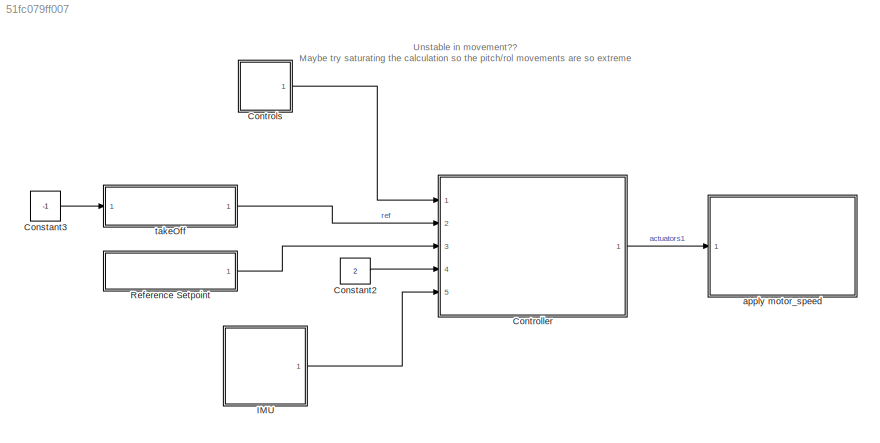
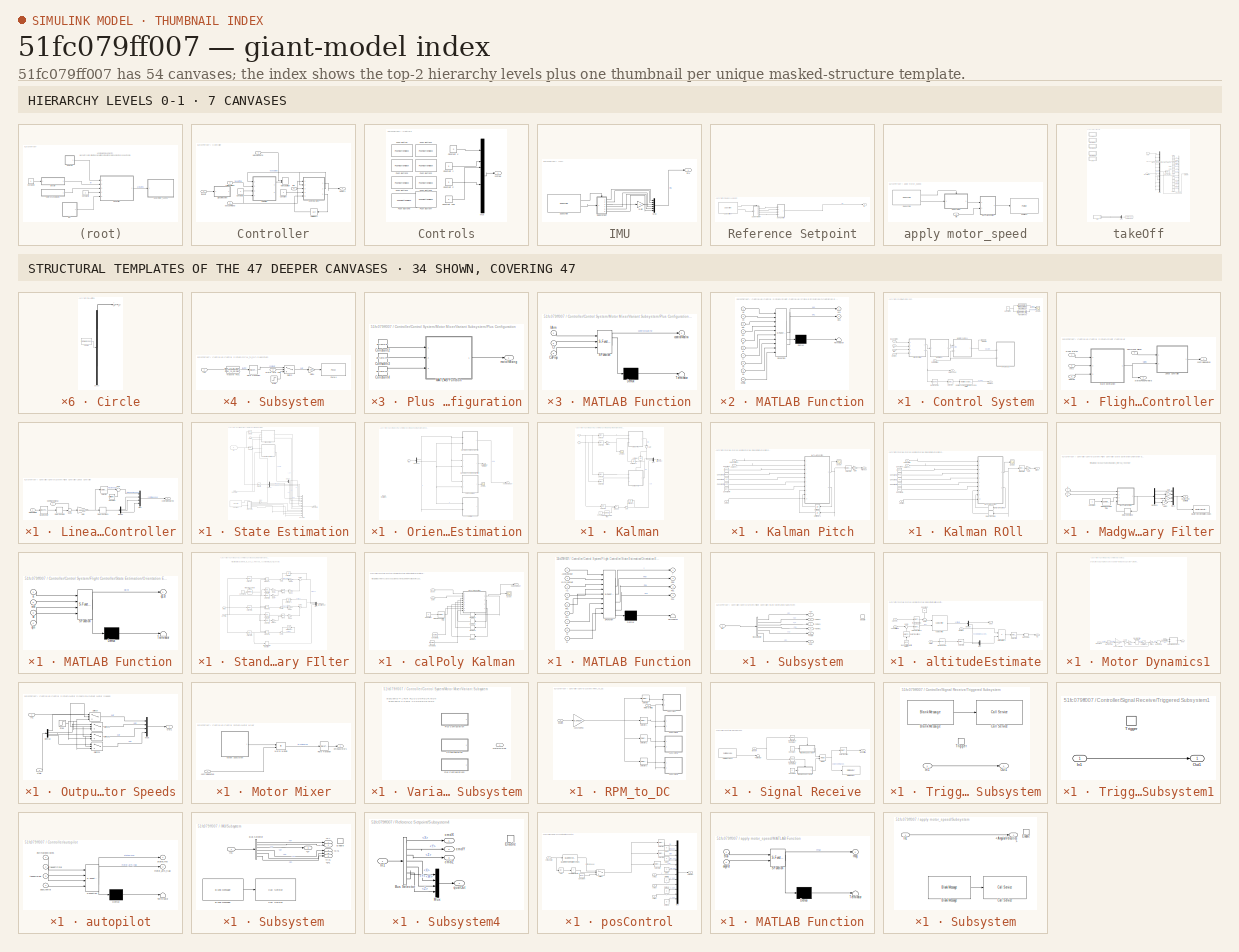
[diagram: thumbnail index - top-2 hierarchy levels (7 canvases) + 34 structural-template representatives of the remaining 47 canvases]
MODEL slx_51fc079ff007
KIND model
CONFIG AbsTol = auto
CONFIG EnableMultiTasking = off
CONFIG FixedStep = .01
CONFIG MaxStep = auto
CONFIG MinStep = auto
CONFIG RelTol = 1e-3
CONFIG SampleTimeConstraint = Unconstrained
CONFIG SolverName = FixedStepAuto
CONFIG StartTime = 0.0
CONFIG StopTime = inf
WORKSPACE source: mxarray member
WORKSPACE SL_ROS_VariableLengthArrays_MaxSizes: object (value not decoded)
BLOCK [Constant] Constant2
  Value = 2
BLOCK [Constant] Constant3
  Value = -1
BLOCK [SubSystem] Controller
  Ports = [5, 1]
  RequestExecContextInheritance = off
BLOCK [Constant] Controller/Constant
BLOCK [Constant] Controller/Constant1
BLOCK [SubSystem] Controller/Control System
  Ports = [5, 3]
  RequestExecContextInheritance = off
BLOCK [BusToVector] Controller/Control System/Bus to Vector
BLOCK [Constant] Controller/Control System/Constant
BLOCK [Inport] Controller/Control System/DCMbe
  Port = 5
BLOCK [Outport] Controller/Control System/DCMout
  Port = 3
BLOCK [SubSystem] Controller/Control System/Flight Controller
  Ports = [4, 2]
  RequestExecContextInheritance = off
BLOCK [Inport] Controller/Control System/Flight Controller/Command Signal
  Port = 2
BLOCK [Inport] Controller/Control System/Flight Controller/DCMbe
  Port = 4
BLOCK [Inport] Controller/Control System/Flight Controller/IMU
  Port = 3
BLOCK [SubSystem] Controller/Control System/Flight Controller/Linear Controller
  Ports = [2, 1]
  RequestExecContextInheritance = off
BLOCK [BusToVector] Controller/Control System/Flight Controller/Linear Controller/Bus to Vector
BLOCK [Inport] Controller/Control System/Flight Controller/Linear Controller/Command Signal
BLOCK [Constant] Controller/Control System/Flight Controller/Linear Controller/Constant
  SampleTime = 1/Fs
  Value = g*(airframe.mass)
BLOCK [Delay] Controller/Control System/Flight Controller/Linear Controller/Delay One Step
  DelayLength = 1
  InputPortMap = u0
  Ports = [1, 1]
BLOCK [Delay] Controller/Control System/Flight Controller/Linear Controller/Delay One Step1
  Commented = through
  DelayLength = 1
  InitialCondition = [0 0 0 0]
  InputPortMap = u0
  Ports = [1, 1]
BLOCK [Demux] Controller/Control System/Flight Controller/Linear Controller/Demux
  Ports = [1, 4]
BLOCK [Gain] Controller/Control System/Flight Controller/Linear Controller/Gain
  Gain = -kLQR
  Multiplication = Matrix(K*u)
BLOCK [Mux] Controller/Control System/Flight Controller/Linear Controller/Mux
  DisplayOption = bar
  Ports = [4, 1]
BLOCK [Selector] Controller/Control System/Flight Controller/Linear Controller/Selector
  IndexOptions = Index vector (dialog)
  Indices = 1
  InputPortWidth = 4
  OutputSizes = 1
  Ports = [1, 1]
BLOCK [Inport] Controller/Control System/Flight Controller/Linear Controller/State Estimate
  Port = 2
BLOCK [Sum] Controller/Control System/Flight Controller/Linear Controller/Sum
  Inputs = |++
  Ports = [2, 1]
BLOCK [Sum] Controller/Control System/Flight Controller/Linear Controller/Sum1
  Inputs = -+|
  Ports = [2, 1]
BLOCK [Outport] Controller/Control System/Flight Controller/Linear Controller/controlRequired
BLOCK [Inport] Controller/Control System/Flight Controller/Quad States
BLOCK [SubSystem] Controller/Control System/Flight Controller/State Estimation
  Ports = [3, 1]
  RequestExecContextInheritance = off
BLOCK [BusCreator] Controller/Control System/Flight Controller/State Estimation/Bus Creator
  DisplayOption = bar
  InheritFromInputs = on
  Inputs = 12
  OutDataTypeStr = Bus: stateCommand
  Ports = [12, 1]
BLOCK [Inport] Controller/Control System/Flight Controller/State Estimation/DCMbe
  Port = 3
BLOCK [Demux] Controller/Control System/Flight Controller/State Estimation/Demux1
  Outputs = 3
  Ports = [1, 3]
BLOCK [Demux] Controller/Control System/Flight Controller/State Estimation/Demux2
  Outputs = 3
  Ports = [1, 3]
BLOCK [Gain] Controller/Control System/Flight Controller/State Estimation/Gain1
  Gain = -1
BLOCK [Inport] Controller/Control System/Flight Controller/State Estimation/IMU
  Port = 2
BLOCK [SubSystem] Controller/Control System/Flight Controller/State Estimation/Orientation Estimation
  Ports = [2, 2]
  RequestExecContextInheritance = off
BLOCK [Demux] Controller/Control System/Flight Controller/State Estimation/Orientation Estimation/Demux2
  Outputs = 2
  Ports = [1, 2]
BLOCK [Inport] Controller/Control System/Flight Controller/State Estimation/Orientation Estimation/IMU
BLOCK [SubSystem] Controller/Control System/Flight Controller/State Estimation/Orientation Estimation/Kalman
  Commented = on
  Ports = [2, 1]
  RequestExecContextInheritance = off
BLOCK [Outport] Controller/Control System/Flight Controller/State Estimation/Orientation Estimation/Kalman/Attitude Est
BLOCK [Constant] Controller/Control System/Flight Controller/State Estimation/Orientation Estimation/Kalman/Constant
BLOCK [Gain] Controller/Control System/Flight Controller/State Estimation/Orientation Estimation/Kalman/Gain
  Commented = through
  Gain = -1
  NameLocation = left
BLOCK [Gain] Controller/Control System/Flight Controller/State Estimation/Orientation Estimation/Kalman/Gain1
  Gain = -1
BLOCK [SubSystem] Controller/Control System/Flight Controller/State Estimation/Orientation Estimation/Kalman/Kalman Pitch
  Ports = [3, 1]
  RequestExecContextInheritance = off
BLOCK [Constant] Controller/Control System/Flight Controller/State Estimation/Orientation Estimation/Kalman/Kalman Pitch/Constant
  Value = [1 1/Fs; 0 1]
BLOCK [Constant] Controller/Control System/Flight Controller/State Estimation/Orientation Estimation/Kalman/Kalman Pitch/Constant1
  Value = [1/Fs ;0]
BLOCK [Constant] Controller/Control System/Flight Controller/State Estimation/Orientation Estimation/Kalman/Kalman Pitch/Constant2
  Value = .03
BLOCK [Constant] Controller/Control System/Flight Controller/State Estimation/Orientation Estimation/Kalman/Kalman Pitch/Constant3
  Value = [.002^2 0; 0 0]
BLOCK [Constant] Controller/Control System/Flight Controller/State Estimation/Orientation Estimation/Kalman/Kalman Pitch/Constant4
  Value = [1 0]
BLOCK [Gain] Controller/Control System/Flight Controller/State Estimation/Orientation Estimation/Kalman/Kalman Pitch/Gain
  Gain = 1/10
BLOCK [SubSystem] Controller/Control System/Flight Controller/State Estimation/Orientation Estimation/Kalman/Kalman Pitch/MATLAB Function
  ErrorFcn = Stateflow.Translate.translate
  PermitHierarchicalResolution = ExplicitOnly
  Ports = [10, 2]
  RequestExecContextInheritance = off
  SFBlockType = MATLAB Function
  TreatAsAtomicUnit = on
BLOCK [Demux] Controller/Control System/Flight Controller/State Estimation/Orientation Estimation/Kalman/Kalman Pitch/MATLAB Function/ Demux 
  Outputs = 1
  Ports = [1, 1]
BLOCK [S-Function] Controller/Control System/Flight Controller/State Estimation/Orientation Estimation/Kalman/Kalman Pitch/MATLAB Function/ SFunction 
  EnableBusSupport = on
  FunctionName = sf_sfun
  PortCounts = [10 3]
  Ports = [10, 3]
  SFcnIsStateOwnerBlock = off
  SFunctionDeploymentMode = off
  Tag = Stateflow S-Function 3
BLOCK [Terminator] Controller/Control System/Flight Controller/State Estimation/Orientation Estimation/Kalman/Kalman Pitch/MATLAB Function/ Terminator 
BLOCK [Inport] Controller/Control System/Flight Controller/State Estimation/Orientation Estimation/Kalman/Kalman Pitch/MATLAB Function/H
  Port = 7
BLOCK [Inport] Controller/Control System/Flight Controller/State Estimation/Orientation Estimation/Kalman/Kalman Pitch/MATLAB Function/Q
  Port = 6
BLOCK [Inport] Controller/Control System/Flight Controller/State Estimation/Orientation Estimation/Kalman/Kalman Pitch/MATLAB Function/R
  Port = 5
BLOCK [Inport] Controller/Control System/Flight Controller/State Estimation/Orientation Estimation/Kalman/Kalman Pitch/MATLAB Function/phi
  Port = 3
BLOCK [Inport] Controller/Control System/Flight Controller/State Estimation/Orientation Estimation/Kalman/Kalman Pitch/MATLAB Function/pk
  Port = 9
BLOCK [Outport] Controller/Control System/Flight Controller/State Estimation/Orientation Estimation/Kalman/Kalman Pitch/MATLAB Function/pk1
  Port = 2
BLOCK [Inport] Controller/Control System/Flight Controller/State Estimation/Orientation Estimation/Kalman/Kalman Pitch/MATLAB Function/psi
  Port = 4
BLOCK [Inport] Controller/Control System/Flight Controller/State Estimation/Orientation Estimation/Kalman/Kalman Pitch/MATLAB Function/uk
BLOCK [Inport] Controller/Control System/Flight Controller/State Estimation/Orientation Estimation/Kalman/Kalman Pitch/MATLAB Function/xk
  Port = 8
BLOCK [Outport] Controller/Control System/Flight Controller/State Estimation/Orientation Estimation/Kalman/Kalman Pitch/MATLAB Function/xk1
BLOCK [Inport] Controller/Control System/Flight Controller/State Estimation/Orientation Estimation/Kalman/Kalman Pitch/MATLAB Function/xkRoll
  Port = 10
BLOCK [Inport] Controller/Control System/Flight Controller/State Estimation/Orientation Estimation/Kalman/Kalman Pitch/MATLAB Function/zk
  Port = 2
BLOCK [Outport] Controller/Control System/Flight Controller/State Estimation/Orientation Estimation/Kalman/Kalman Pitch/Pitch est
BLOCK [Scope] Controller/Control System/Flight Controller/State Estimation/Orientation Estimation/Kalman/Kalman Pitch/Scope
  Floating = off
  NumInputPorts = 1
  Ports = [1]
  ScopeSpecificationString = Simulink.scopes.TimeScopeBlockCfg('CurrentConfiguration', extmgr.ConfigurationSet(extmgr.Configuration('Core','General UI',true),extmgr.Configuration('Core','Source UI',true),extmgr.Configuration('Sources','WiredSimulink',true,'DataLoggingVariableName','ScopeData13'),extmgr.Configuration('Visuals','Time Domain',true,'SerializedDisplays',{struct('MinYLimReal','-132.44189','MaxYLimReal','141.9909','...<+1487ch>
BLOCK [Selector] Controller/Control System/Flight Controller/State Estimation/Orientation Estimation/Kalman/Kalman Pitch/Selector1
  IndexOptions = Index vector (dialog)
  Indices = 1
  InputPortWidth = 2
  OutputSizes = 1
  Ports = [1, 1]
BLOCK [UnitDelay] Controller/Control System/Flight Controller/State Estimation/Orientation Estimation/Kalman/Kalman Pitch/Unit Delay
  HasFrameUpgradeWarning = on
  InitialCondition = [.5 0; 0 0.01]
  NameLocation = top
  SampleTime = -1
BLOCK [UnitDelay] Controller/Control System/Flight Controller/State Estimation/Orientation Estimation/Kalman/Kalman Pitch/Unit Delay1
  HasFrameUpgradeWarning = on
  InitialCondition = [0;0]
  NameLocation = top
  SampleTime = -1
BLOCK [Inport] Controller/Control System/Flight Controller/State Estimation/Orientation Estimation/Kalman/Kalman Pitch/uk(gyro pitch)
BLOCK [Inport] Controller/Control System/Flight Controller/State Estimation/Orientation Estimation/Kalman/Kalman Pitch/xkRoll
  Port = 3
BLOCK [Inport] Controller/Control System/Flight Controller/State Estimation/Orientation Estimation/Kalman/Kalman Pitch/zk(acc y)
  Port = 2
BLOCK [SubSystem] Controller/Control System/Flight Controller/State Estimation/Orientation Estimation/Kalman/Kalman ROll
  PortSchema = {"entries":[{"content":{"sides":[{"content":{"connectorIds":["In1","In2"]},"type":"ConnectorPlacement.EquallySpacedRectSide","uuid":"866f8eac-9c5c-472f-897f-b7de637f52da"},{"content":{"connectorIds":["Out1"],"side":"RIGHT"},"type":"ConnectorPlacement.EquallySpacedRectSide","uuid":"ce3bd2eb-0be5-45eb-ab3a-703abeb90144"},{"content":{"connectorIds":["In3"],"side":"TOP"},"type":"ConnectorPlacement.Equ...<+251ch>
  Ports = [3, 1]
  RequestExecContextInheritance = off
BLOCK [Constant] Controller/Control System/Flight Controller/State Estimation/Orientation Estimation/Kalman/Kalman ROll/Constant
  Value = [1 1/Fs; 0 1]
BLOCK [Constant] Controller/Control System/Flight Controller/State Estimation/Orientation Estimation/Kalman/Kalman ROll/Constant1
  Value = [1/Fs ;0]
BLOCK [Constant] Controller/Control System/Flight Controller/State Estimation/Orientation Estimation/Kalman/Kalman ROll/Constant2
  Value = .03
BLOCK [Constant] Controller/Control System/Flight Controller/State Estimation/Orientation Estimation/Kalman/Kalman ROll/Constant3
  Value = [.002^2 0; 0 0]
BLOCK [Constant] Controller/Control System/Flight Controller/State Estimation/Orientation Estimation/Kalman/Kalman ROll/Constant4
  Value = [1 0]
BLOCK [Delay] Controller/Control System/Flight Controller/State Estimation/Orientation Estimation/Kalman/Kalman ROll/Delay One Step
  DelayLength = 1
  InitialCondition = [0;0]
  InputPortMap = u0
  NameLocation = top
  Ports = [1, 1]
BLOCK [Delay] Controller/Control System/Flight Controller/State Estimation/Orientation Estimation/Kalman/Kalman ROll/Delay One Step1
  DelayLength = 1
  InitialCondition = [.5 0; 0 0.01]
  InputPortMap = u0
  NameLocation = top
  Ports = [1, 1]
BLOCK [Gain] Controller/Control System/Flight Controller/State Estimation/Orientation Estimation/Kalman/Kalman ROll/Gain
  Gain = 1/10
BLOCK [SubSystem] Controller/Control System/Flight Controller/State Estimation/Orientation Estimation/Kalman/Kalman ROll/MATLAB Function
  ErrorFcn = Stateflow.Translate.translate
  PermitHierarchicalResolution = ExplicitOnly
  Ports = [10, 2]
  RequestExecContextInheritance = off
  SFBlockType = MATLAB Function
  TreatAsAtomicUnit = on
BLOCK [Demux] Controller/Control System/Flight Controller/State Estimation/Orientation Estimation/Kalman/Kalman ROll/MATLAB Function/ Demux 
  Outputs = 1
  Ports = [1, 1]
BLOCK [S-Function] Controller/Control System/Flight Controller/State Estimation/Orientation Estimation/Kalman/Kalman ROll/MATLAB Function/ SFunction 
  EnableBusSupport = on
  FunctionName = sf_sfun
  PortCounts = [10 3]
  Ports = [10, 3]
  SFcnIsStateOwnerBlock = off
  SFunctionDeploymentMode = off
  Tag = Stateflow S-Function 5
BLOCK [Terminator] Controller/Control System/Flight Controller/State Estimation/Orientation Estimation/Kalman/Kalman ROll/MATLAB Function/ Terminator 
BLOCK [Inport] Controller/Control System/Flight Controller/State Estimation/Orientation Estimation/Kalman/Kalman ROll/MATLAB Function/H
  Port = 7
BLOCK [Inport] Controller/Control System/Flight Controller/State Estimation/Orientation Estimation/Kalman/Kalman ROll/MATLAB Function/Q
  Port = 6
BLOCK [Inport] Controller/Control System/Flight Controller/State Estimation/Orientation Estimation/Kalman/Kalman ROll/MATLAB Function/R
  Port = 5
BLOCK [Inport] Controller/Control System/Flight Controller/State Estimation/Orientation Estimation/Kalman/Kalman ROll/MATLAB Function/phi
  Port = 3
BLOCK [Inport] Controller/Control System/Flight Controller/State Estimation/Orientation Estimation/Kalman/Kalman ROll/MATLAB Function/pk
  Port = 9
BLOCK [Outport] Controller/Control System/Flight Controller/State Estimation/Orientation Estimation/Kalman/Kalman ROll/MATLAB Function/pk1
  Port = 2
BLOCK [Inport] Controller/Control System/Flight Controller/State Estimation/Orientation Estimation/Kalman/Kalman ROll/MATLAB Function/psi
  Port = 4
BLOCK [Inport] Controller/Control System/Flight Controller/State Estimation/Orientation Estimation/Kalman/Kalman ROll/MATLAB Function/uk
BLOCK [Inport] Controller/Control System/Flight Controller/State Estimation/Orientation Estimation/Kalman/Kalman ROll/MATLAB Function/xk
  Port = 8
BLOCK [Outport] Controller/Control System/Flight Controller/State Estimation/Orientation Estimation/Kalman/Kalman ROll/MATLAB Function/xk1
BLOCK [Inport] Controller/Control System/Flight Controller/State Estimation/Orientation Estimation/Kalman/Kalman ROll/MATLAB Function/xkPitch
  Port = 10
BLOCK [Inport] Controller/Control System/Flight Controller/State Estimation/Orientation Estimation/Kalman/Kalman ROll/MATLAB Function/zk
  Port = 2
BLOCK [Scope] Controller/Control System/Flight Controller/State Estimation/Orientation Estimation/Kalman/Kalman ROll/Scope
  Floating = off
  NumInputPorts = 1
  Ports = [1]
  ScopeSpecificationString = Simulink.scopes.TimeScopeBlockCfg('CurrentConfiguration', extmgr.ConfigurationSet(extmgr.Configuration('Core','General UI',true),extmgr.Configuration('Core','Source UI',true),extmgr.Configuration('Sources','WiredSimulink',true,'DataLoggingVariableName','ScopeData13'),extmgr.Configuration('Visuals','Time Domain',true,'SerializedDisplays',{struct('MinYLimReal','-15.54504','MaxYLimReal','15.60957','Y...<+1483ch>
BLOCK [Selector] Controller/Control System/Flight Controller/State Estimation/Orientation Estimation/Kalman/Kalman ROll/Selector1
  IndexOptions = Index vector (dialog)
  Indices = 1
  InputPortWidth = 2
  OutputSizes = 1
  Ports = [1, 1]
BLOCK [Outport] Controller/Control System/Flight Controller/State Estimation/Orientation Estimation/Kalman/Kalman ROll/roll est
BLOCK [Inport] Controller/Control System/Flight Controller/State Estimation/Orientation Estimation/Kalman/Kalman ROll/uk(gyro roll)
BLOCK [Inport] Controller/Control System/Flight Controller/State Estimation/Orientation Estimation/Kalman/Kalman ROll/xkPitch
  Port = 3
BLOCK [Inport] Controller/Control System/Flight Controller/State Estimation/Orientation Estimation/Kalman/Kalman ROll/zk(acc y)
  Port = 2
BLOCK [Mux] Controller/Control System/Flight Controller/State Estimation/Orientation Estimation/Kalman/Mux
  DisplayOption = bar
  Inputs = 3
  Ports = [3, 1]
BLOCK [Product] Controller/Control System/Flight Controller/State Estimation/Orientation Estimation/Kalman/Product
  Ports = [2, 1]
BLOCK [Scope] Controller/Control System/Flight Controller/State Estimation/Orientation Estimation/Kalman/Scope2
  Floating = off
  NumInputPorts = 1
  Ports = [1]
  ScopeSpecificationString = Simulink.scopes.TimeScopeBlockCfg('CurrentConfiguration', extmgr.ConfigurationSet(extmgr.Configuration('Core','General UI',true),extmgr.Configuration('Core','Source UI',true),extmgr.Configuration('Sources','WiredSimulink',true,'DataLoggingVariableName','ScopeData16'),extmgr.Configuration('Visuals','Time Domain',true,'SerializedDisplays',{struct('MinYLimReal','-282.15521','MaxYLimReal','318.2717','...<+1409ch>
BLOCK [Selector] Controller/Control System/Flight Controller/State Estimation/Orientation Estimation/Kalman/Selector
  IndexOptions = Index vector (dialog)
  Indices = [2,3]
  InputPortWidth = 3
  OutputSizes = 1
  Ports = [1, 1]
BLOCK [Selector] Controller/Control System/Flight Controller/State Estimation/Orientation Estimation/Kalman/Selector1
  IndexOptions = Index vector (dialog)
  Indices = 1
  InputPortWidth = 3
  OutputSizes = 1
  Ports = [1, 1]
BLOCK [Selector] Controller/Control System/Flight Controller/State Estimation/Orientation Estimation/Kalman/Selector2
  IndexOptions = Index vector (dialog)
  Indices = [1 3]
  InputPortWidth = 3
  OutputSizes = 1
  Ports = [1, 1]
BLOCK [Selector] Controller/Control System/Flight Controller/State Estimation/Orientation Estimation/Kalman/Selector3
  IndexOptions = Index vector (dialog)
  Indices = 2
  InputPortWidth = 3
  OutputSizes = 1
  Ports = [1, 1]
BLOCK [Selector] Controller/Control System/Flight Controller/State Estimation/Orientation Estimation/Kalman/Selector4
  IndexOptions = Index vector (dialog)
  Indices = 3
  InputPortWidth = 3
  OutputSizes = 1
  Ports = [1, 1]
BLOCK [Sum] Controller/Control System/Flight Controller/State Estimation/Orientation Estimation/Kalman/Sum
  Inputs = ++|
  Ports = [2, 1]
BLOCK [UnitDelay] Controller/Control System/Flight Controller/State Estimation/Orientation Estimation/Kalman/Unit Delay
  HasFrameUpgradeWarning = on
  NameLocation = left
  SampleTime = -1
BLOCK [UnitDelay] Controller/Control System/Flight Controller/State Estimation/Orientation Estimation/Kalman/Unit Delay1
  HasFrameUpgradeWarning = on
  NameLocation = top
  SampleTime = -1
BLOCK [UnitDelay] Controller/Control System/Flight Controller/State Estimation/Orientation Estimation/Kalman/Unit Delay2
  HasFrameUpgradeWarning = on
  NameLocation = top
  SampleTime = -1
BLOCK [SampleTimeMath] Controller/Control System/Flight Controller/State Estimation/Orientation Estimation/Kalman/Weighted Sample Time
  TsampMathOp = Ts Only
BLOCK [Inport] Controller/Control System/Flight Controller/State Estimation/Orientation Estimation/Kalman/u
BLOCK [Inport] Controller/Control System/Flight Controller/State Estimation/Orientation Estimation/Kalman/y
  NameLocation = left
  Port = 2
BLOCK [SubSystem] Controller/Control System/Flight Controller/State Estimation/Orientation Estimation/Madgwick's Complemntary Filter
  Commented = on
  Ports = [2, 1]
  RequestExecContextInheritance = off
BLOCK [Constant] Controller/Control System/Flight Controller/State Estimation/Orientation Estimation/Madgwick's Complemntary Filter/Constant
BLOCK [Delay] Controller/Control System/Flight Controller/State Estimation/Orientation Estimation/Madgwick's Complemntary Filter/Delay One Step2
  DelayLength = 1
  InitialCondition = [1 0 0 0]
  InputPortMap = u0
  NameLocation = top
  Ports = [1, 1]
BLOCK [Demux] Controller/Control System/Flight Controller/State Estimation/Orientation Estimation/Madgwick's Complemntary Filter/Demux3
  Ports = [1, 4]
BLOCK [Gain] Controller/Control System/Flight Controller/State Estimation/Orientation Estimation/Madgwick's Complemntary Filter/Gain
BLOCK [Gain] Controller/Control System/Flight Controller/State Estimation/Orientation Estimation/Madgwick's Complemntary Filter/Gain1
BLOCK [Gain] Controller/Control System/Flight Controller/State Estimation/Orientation Estimation/Madgwick's Complemntary Filter/Gain2
  Gain = -1
BLOCK [SubSystem] Controller/Control System/Flight Controller/State Estimation/Orientation Estimation/Madgwick's Complemntary Filter/MATLAB Function
  ErrorFcn = Stateflow.Translate.translate
  PermitHierarchicalResolution = ExplicitOnly
  Ports = [4, 1]
  RequestExecContextInheritance = off
  SFBlockType = MATLAB Function
  TreatAsAtomicUnit = on
BLOCK [Demux] Controller/Control System/Flight Controller/State Estimation/Orientation Estimation/Madgwick's Complemntary Filter/MATLAB Function/ Demux 
  Outputs = 1
  Ports = [1, 1]
BLOCK [S-Function] Controller/Control System/Flight Controller/State Estimation/Orientation Estimation/Madgwick's Complemntary Filter/MATLAB Function/ SFunction 
  EnableBusSupport = on
  FunctionName = sf_sfun
  PortCounts = [4 2]
  Ports = [4, 2]
  SFcnIsStateOwnerBlock = off
  SFunctionDeploymentMode = off
  Tag = Stateflow S-Function 2
BLOCK [Terminator] Controller/Control System/Flight Controller/State Estimation/Orientation Estimation/Madgwick's Complemntary Filter/MATLAB Function/ Terminator 
BLOCK [Inport] Controller/Control System/Flight Controller/State Estimation/Orientation Estimation/Madgwick's Complemntary Filter/MATLAB Function/a
BLOCK [Inport] Controller/Control System/Flight Controller/State Estimation/Orientation Estimation/Madgwick's Complemntary Filter/MATLAB Function/dt
  Port = 3
BLOCK [Outport] Controller/Control System/Flight Controller/State Estimation/Orientation Estimation/Madgwick's Complemntary Filter/MATLAB Function/qEst
BLOCK [Inport] Controller/Control System/Flight Controller/State Estimation/Orientation Estimation/Madgwick's Complemntary Filter/MATLAB Function/qIn
  Port = 4
BLOCK [Inport] Controller/Control System/Flight Controller/State Estimation/Orientation Estimation/Madgwick's Complemntary Filter/MATLAB Function/wB
  Port = 2
BLOCK [Mux] Controller/Control System/Flight Controller/State Estimation/Orientation Estimation/Madgwick's Complemntary Filter/Mux1
  DisplayOption = bar
  Ports = [4, 1]
BLOCK [Reference] Controller/Control System/Flight Controller/State Estimation/Orientation Estimation/Madgwick's Complemntary Filter/Quaternions to Rotation Angles  REF=sharedtransform/Quaternions to Rotation Angles
  AttributesFormatString = Rotation Order: %<rotationOrder>
  Ports = [1, 1]
  SourceBlock = sharedtransform/Quaternions to Rotation Angles
  SourceProductBaseCode = AE,PW,DR,MT,UV,VE
  SourceType = Quat2Ang
BLOCK [SampleTimeMath] Controller/Control System/Flight Controller/State Estimation/Orientation Estimation/Madgwick's Complemntary Filter/Weighted Sample Time
  TsampMathOp = Ts Only
BLOCK [Inport] Controller/Control System/Flight Controller/State Estimation/Orientation Estimation/Madgwick's Complemntary Filter/a
BLOCK [Outport] Controller/Control System/Flight Controller/State Estimation/Orientation Estimation/Madgwick's Complemntary Filter/quaternion Estimate
BLOCK [Inport] Controller/Control System/Flight Controller/State Estimation/Orientation Estimation/Madgwick's Complemntary Filter/w
  Port = 2
BLOCK [Scope] Controller/Control System/Flight Controller/State Estimation/Orientation Estimation/Scope
  Commented = on
  Floating = off
  NumInputPorts = 1
  Ports = [1]
  ScopeSpecificationString = Simulink.scopes.TimeScopeBlockCfg('CurrentConfiguration', extmgr.ConfigurationSet(extmgr.Configuration('Core','General UI',true),extmgr.Configuration('Core','Source UI',true),extmgr.Configuration('Sources','WiredSimulink',true,'DataLoggingVariableName','ScopeData7'),extmgr.Configuration('Visuals','Time Domain',true,'SerializedDisplays',{struct('MinYLimReal','-1988.02528','MaxYLimReal','621.75315',...<+1433ch>
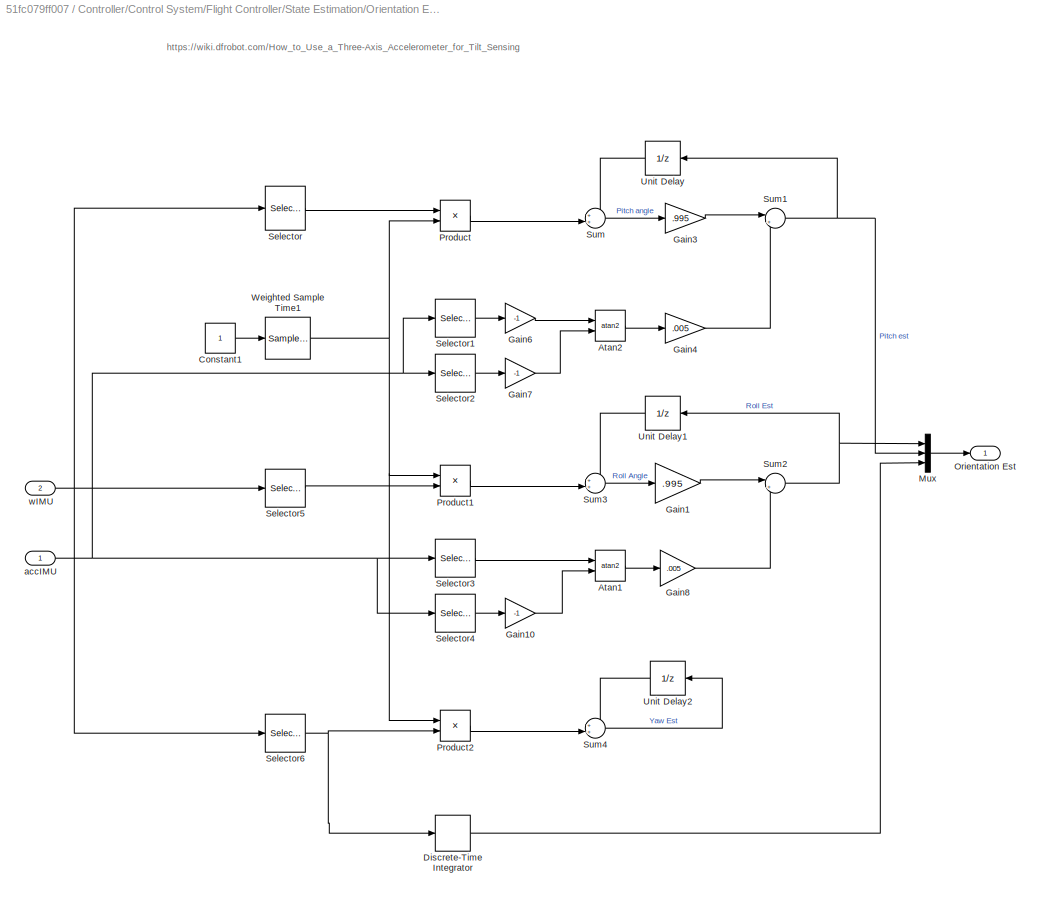
BLOCK [SubSystem] Controller/Control System/Flight Controller/State Estimation/Orientation Estimation/Standard Complementary FIlter
  Ports = [2, 1]
  RequestExecContextInheritance = off
BLOCK [Trigonometry] Controller/Control System/Flight Controller/State Estimation/Orientation Estimation/Standard Complementary FIlter/Atan1
  Operator = atan2
  Ports = [2, 1]
BLOCK [Trigonometry] Controller/Control System/Flight Controller/State Estimation/Orientation Estimation/Standard Complementary FIlter/Atan2
  Operator = atan2
  Ports = [2, 1]
BLOCK [Constant] Controller/Control System/Flight Controller/State Estimation/Orientation Estimation/Standard Complementary FIlter/Constant1
BLOCK [DiscreteIntegrator] Controller/Control System/Flight Controller/State Estimation/Orientation Estimation/Standard Complementary FIlter/Discrete-Time Integrator
  ICPrevOutput = DiscIntNeverNeededParam
  ICPrevScaledInput = DiscIntNeverNeededParam
  InitialConditionSetting = Auto
  Ports = [1, 1]
  SampleTime = -1
BLOCK [Gain] Controller/Control System/Flight Controller/State Estimation/Orientation Estimation/Standard Complementary FIlter/Gain1
  Gain = .995
BLOCK [Gain] Controller/Control System/Flight Controller/State Estimation/Orientation Estimation/Standard Complementary FIlter/Gain10
  Gain = -1
BLOCK [Gain] Controller/Control System/Flight Controller/State Estimation/Orientation Estimation/Standard Complementary FIlter/Gain3
  Gain = .995
BLOCK [Gain] Controller/Control System/Flight Controller/State Estimation/Orientation Estimation/Standard Complementary FIlter/Gain4
  Gain = .005
BLOCK [Gain] Controller/Control System/Flight Controller/State Estimation/Orientation Estimation/Standard Complementary FIlter/Gain6
  Gain = -1
BLOCK [Gain] Controller/Control System/Flight Controller/State Estimation/Orientation Estimation/Standard Complementary FIlter/Gain7
  Gain = -1
BLOCK [Gain] Controller/Control System/Flight Controller/State Estimation/Orientation Estimation/Standard Complementary FIlter/Gain8
  Gain = .005
BLOCK [Mux] Controller/Control System/Flight Controller/State Estimation/Orientation Estimation/Standard Complementary FIlter/Mux
  DisplayOption = bar
  Inputs = 3
  Ports = [3, 1]
BLOCK [Outport] Controller/Control System/Flight Controller/State Estimation/Orientation Estimation/Standard Complementary FIlter/Orientation Est
BLOCK [Product] Controller/Control System/Flight Controller/State Estimation/Orientation Estimation/Standard Complementary FIlter/Product
  Ports = [2, 1]
BLOCK [Product] Controller/Control System/Flight Controller/State Estimation/Orientation Estimation/Standard Complementary FIlter/Product1
  Ports = [2, 1]
BLOCK [Product] Controller/Control System/Flight Controller/State Estimation/Orientation Estimation/Standard Complementary FIlter/Product2
  Ports = [2, 1]
BLOCK [Selector] Controller/Control System/Flight Controller/State Estimation/Orientation Estimation/Standard Complementary FIlter/Selector
  IndexOptions = Index vector (dialog)
  Indices = 2
  InputPortWidth = 3
  OutputSizes = 1
  Ports = [1, 1]
BLOCK [Selector] Controller/Control System/Flight Controller/State Estimation/Orientation Estimation/Standard Complementary FIlter/Selector1
  IndexOptions = Index vector (dialog)
  Indices = 1
  InputPortWidth = 3
  NameLocation = right
  OutputSizes = 1
  Ports = [1, 1]
BLOCK [Selector] Controller/Control System/Flight Controller/State Estimation/Orientation Estimation/Standard Complementary FIlter/Selector2
  IndexOptions = Index vector (dialog)
  Indices = 3
  InputPortWidth = 3
  OutputSizes = 1
  Ports = [1, 1]
BLOCK [Selector] Controller/Control System/Flight Controller/State Estimation/Orientation Estimation/Standard Complementary FIlter/Selector3
  IndexOptions = Index vector (dialog)
  Indices = 2
  InputPortWidth = 3
  OutputSizes = 1
  Ports = [1, 1]
BLOCK [Selector] Controller/Control System/Flight Controller/State Estimation/Orientation Estimation/Standard Complementary FIlter/Selector4
  IndexOptions = Index vector (dialog)
  Indices = 3
  InputPortWidth = 3
  OutputSizes = 1
  Ports = [1, 1]
BLOCK [Selector] Controller/Control System/Flight Controller/State Estimation/Orientation Estimation/Standard Complementary FIlter/Selector5
  IndexOptions = Index vector (dialog)
  Indices = 1
  InputPortWidth = 3
  OutputSizes = 1
  Ports = [1, 1]
BLOCK [Selector] Controller/Control System/Flight Controller/State Estimation/Orientation Estimation/Standard Complementary FIlter/Selector6
  IndexOptions = Index vector (dialog)
  Indices = 3
  InputPortWidth = 3
  OutputSizes = 1
  Ports = [1, 1]
BLOCK [Sum] Controller/Control System/Flight Controller/State Estimation/Orientation Estimation/Standard Complementary FIlter/Sum
  Inputs = ++|
  Ports = [2, 1]
BLOCK [Sum] Controller/Control System/Flight Controller/State Estimation/Orientation Estimation/Standard Complementary FIlter/Sum1
  Inputs = |++
  Ports = [2, 1]
BLOCK [Sum] Controller/Control System/Flight Controller/State Estimation/Orientation Estimation/Standard Complementary FIlter/Sum2
  Inputs = |++
  Ports = [2, 1]
BLOCK [Sum] Controller/Control System/Flight Controller/State Estimation/Orientation Estimation/Standard Complementary FIlter/Sum3
  Inputs = ++|
  Ports = [2, 1]
BLOCK [Sum] Controller/Control System/Flight Controller/State Estimation/Orientation Estimation/Standard Complementary FIlter/Sum4
  Inputs = ++|
  Ports = [2, 1]
BLOCK [UnitDelay] Controller/Control System/Flight Controller/State Estimation/Orientation Estimation/Standard Complementary FIlter/Unit Delay
  HasFrameUpgradeWarning = on
  NameLocation = top
  SampleTime = -1
BLOCK [UnitDelay] Controller/Control System/Flight Controller/State Estimation/Orientation Estimation/Standard Complementary FIlter/Unit Delay1
  HasFrameUpgradeWarning = on
  NameLocation = top
  SampleTime = -1
BLOCK [UnitDelay] Controller/Control System/Flight Controller/State Estimation/Orientation Estimation/Standard Complementary FIlter/Unit Delay2
  HasFrameUpgradeWarning = on
  NameLocation = top
  SampleTime = -1
BLOCK [SampleTimeMath] Controller/Control System/Flight Controller/State Estimation/Orientation Estimation/Standard Complementary FIlter/Weighted Sample Time1
  TsampMathOp = Ts Only
BLOCK [Inport] Controller/Control System/Flight Controller/State Estimation/Orientation Estimation/Standard Complementary FIlter/accIMU
BLOCK [Inport] Controller/Control System/Flight Controller/State Estimation/Orientation Estimation/Standard Complementary FIlter/wIMU
  Port = 2
BLOCK [SubSystem] Controller/Control System/Flight Controller/State Estimation/Orientation Estimation/calPoly Kalman
  Commented = on
  Ports = [2, 1]
  RequestExecContextInheritance = off
BLOCK [Constant] Controller/Control System/Flight Controller/State Estimation/Orientation Estimation/calPoly Kalman/Constant
BLOCK [Constant] Controller/Control System/Flight Controller/State Estimation/Orientation Estimation/calPoly Kalman/Constant1
  Value = Qkalman
BLOCK [Constant] Controller/Control System/Flight Controller/State Estimation/Orientation Estimation/calPoly Kalman/Constant2
  Value = Rkalman
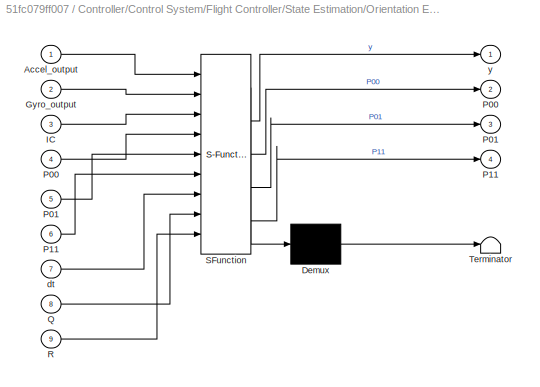
BLOCK [SubSystem] Controller/Control System/Flight Controller/State Estimation/Orientation Estimation/calPoly Kalman/MATLAB Function
  ErrorFcn = Stateflow.Translate.translate
  PermitHierarchicalResolution = ExplicitOnly
  Ports = [9, 4]
  RequestExecContextInheritance = off
  SFBlockType = MATLAB Function
  TreatAsAtomicUnit = on
BLOCK [Demux] Controller/Control System/Flight Controller/State Estimation/Orientation Estimation/calPoly Kalman/MATLAB Function/ Demux 
  Outputs = 1
  Ports = [1, 1]
BLOCK [S-Function] Controller/Control System/Flight Controller/State Estimation/Orientation Estimation/calPoly Kalman/MATLAB Function/ SFunction 
  EnableBusSupport = on
  FunctionName = sf_sfun
  PortCounts = [9 5]
  Ports = [9, 5]
  SFcnIsStateOwnerBlock = off
  SFunctionDeploymentMode = off
  Tag = Stateflow S-Function 4
BLOCK [Terminator] Controller/Control System/Flight Controller/State Estimation/Orientation Estimation/calPoly Kalman/MATLAB Function/ Terminator 
BLOCK [Inport] Controller/Control System/Flight Controller/State Estimation/Orientation Estimation/calPoly Kalman/MATLAB Function/Accel_output
BLOCK [Inport] Controller/Control System/Flight Controller/State Estimation/Orientation Estimation/calPoly Kalman/MATLAB Function/Gyro_output
  Port = 2
BLOCK [Inport] Controller/Control System/Flight Controller/State Estimation/Orientation Estimation/calPoly Kalman/MATLAB Function/IC
  Port = 3
BLOCK [Outport] Controller/Control System/Flight Controller/State Estimation/Orientation Estimation/calPoly Kalman/MATLAB Function/P00
  Port = 2
BLOCK [Inport] Controller/Control System/Flight Controller/State Estimation/Orientation Estimation/calPoly Kalman/MATLAB Function/P00 
  Port = 4
BLOCK [Outport] Controller/Control System/Flight Controller/State Estimation/Orientation Estimation/calPoly Kalman/MATLAB Function/P01
  Port = 3
BLOCK [Inport] Controller/Control System/Flight Controller/State Estimation/Orientation Estimation/calPoly Kalman/MATLAB Function/P01 
  Port = 5
BLOCK [Outport] Controller/Control System/Flight Controller/State Estimation/Orientation Estimation/calPoly Kalman/MATLAB Function/P11
  Port = 4
BLOCK [Inport] Controller/Control System/Flight Controller/State Estimation/Orientation Estimation/calPoly Kalman/MATLAB Function/P11 
  Port = 6
BLOCK [Inport] Controller/Control System/Flight Controller/State Estimation/Orientation Estimation/calPoly Kalman/MATLAB Function/Q
  Port = 8
BLOCK [Inport] Controller/Control System/Flight Controller/State Estimation/Orientation Estimation/calPoly Kalman/MATLAB Function/R
  Port = 9
BLOCK [Inport] Controller/Control System/Flight Controller/State Estimation/Orientation Estimation/calPoly Kalman/MATLAB Function/dt
  Port = 7
BLOCK [Outport] Controller/Control System/Flight Controller/State Estimation/Orientation Estimation/calPoly Kalman/MATLAB Function/y
BLOCK [Memory] Controller/Control System/Flight Controller/State Estimation/Orientation Estimation/calPoly Kalman/Memory1
  InheritSampleTime = on
  InitialCondition = [Gyro_pitch,Gyro_roll,0]
  NameLocation = top
BLOCK [Memory] Controller/Control System/Flight Controller/State Estimation/Orientation Estimation/calPoly Kalman/Memory2
  InheritSampleTime = on
  InitialCondition = P00
  NameLocation = top
BLOCK [Memory] Controller/Control System/Flight Controller/State Estimation/Orientation Estimation/calPoly Kalman/Memory3
  InheritSampleTime = on
  InitialCondition = P01
  NameLocation = top
BLOCK [Memory] Controller/Control System/Flight Controller/State Estimation/Orientation Estimation/calPoly Kalman/Memory4
  InheritSampleTime = on
  InitialCondition = P11
  NameLocation = top
BLOCK [Scope] Controller/Control System/Flight Controller/State Estimation/Orientation Estimation/calPoly Kalman/Scope
  Floating = off
  NumInputPorts = 1
  Ports = [1]
  ScopeSpecificationString = Simulink.scopes.TimeScopeBlockCfg('CurrentConfiguration', extmgr.ConfigurationSet(extmgr.Configuration('Core','General UI',true),extmgr.Configuration('Core','Source UI',true),extmgr.Configuration('Sources','WiredSimulink',true,'DataLoggingVariableName','ScopeData5'),extmgr.Configuration('Visuals','Time Domain',true,'SerializedDisplays',{struct('MinYLimReal','-1988.02528','MaxYLimReal','621.75315',...<+1536ch>
BLOCK [SampleTimeMath] Controller/Control System/Flight Controller/State Estimation/Orientation Estimation/calPoly Kalman/Weighted Sample Time
  TsampMathOp = Ts Only
BLOCK [Inport] Controller/Control System/Flight Controller/State Estimation/Orientation Estimation/calPoly Kalman/accel
BLOCK [Outport] Controller/Control System/Flight Controller/State Estimation/Orientation Estimation/calPoly Kalman/eulerAngle Est
BLOCK [Inport] Controller/Control System/Flight Controller/State Estimation/Orientation Estimation/calPoly Kalman/gyro
  Port = 2
BLOCK [Outport] Controller/Control System/Flight Controller/State Estimation/Orientation Estimation/eulerAngleEst
  Port = 2
BLOCK [Outport] Controller/Control System/Flight Controller/State Estimation/Orientation Estimation/quaternion Estimate
BLOCK [Inport] Controller/Control System/Flight Controller/State Estimation/Orientation Estimation/realStates
  Port = 2
BLOCK [Inport] Controller/Control System/Flight Controller/State Estimation/Quad States
BLOCK [Selector] Controller/Control System/Flight Controller/State Estimation/Selector
  IndexOptions = Index vector (dialog)
  Indices = [4 5 6]
  OutputSizes = 1
  Ports = [1, 1]
BLOCK [Selector] Controller/Control System/Flight Controller/State Estimation/Selector1
  IndexOptions = Index vector (dialog)
  Indices = [1:6]
  InputPortWidth = 6
  OutputSizes = 1
  Ports = [1, 1]
BLOCK [Selector] Controller/Control System/Flight Controller/State Estimation/Selector3
  IndexOptions = Index vector (dialog)
  Indices = [3]
  InputPortWidth = 6
  OutputSizes = 1
  Ports = [1, 1]
BLOCK [Outport] Controller/Control System/Flight Controller/State Estimation/State Estimation
BLOCK [Reference] Controller/Control System/Flight Controller/State Estimation/Subscribe1  REF=robotlib/Subscribe
  Ports = [0, 2]
  SourceBlock = robotlib/Subscribe
  SourceProductBaseCode = RR
  SourceType = ROS Subscribe
BLOCK [SubSystem] Controller/Control System/Flight Controller/State Estimation/Subsystem
  Ports = [1, 6, 1]
  RequestExecContextInheritance = off
BLOCK [Outport] Controller/Control System/Flight Controller/State Estimation/Subsystem/<XPos>
  Port = 2
BLOCK [Outport] Controller/Control System/Flight Controller/State Estimation/Subsystem/<Xvel>1
  Port = 4
BLOCK [Outport] Controller/Control System/Flight Controller/State Estimation/Subsystem/<YPos>
  Port = 3
BLOCK [Outport] Controller/Control System/Flight Controller/State Estimation/Subsystem/<YVel>
  Port = 5
BLOCK [Outport] Controller/Control System/Flight Controller/State Estimation/Subsystem/<Z>
BLOCK [BusSelector] Controller/Control System/Flight Controller/State Estimation/Subsystem/Bus Selector
  OutputSignals = Pose.Pose.Position.Z,Pose.Pose.Position.X,Pose.Pose.Position.Y,Twist.Twist.Linear.X,Twist.Twist.Linear.Y,Twist.Twist.Linear.Z
  Ports = [1, 6]
BLOCK [EnablePort] Controller/Control System/Flight Controller/State Estimation/Subsystem/Enable
  Ports = []
BLOCK [Inport] Controller/Control System/Flight Controller/State Estimation/Subsystem/In1
BLOCK [Outport] Controller/Control System/Flight Controller/State Estimation/Subsystem/zvel
  Port = 6
BLOCK [SubSystem] Controller/Control System/Flight Controller/State Estimation/altitudeEstimate
  Ports = [4, 2]
  RequestExecContextInheritance = off
BLOCK [Reference] Controller/Control System/Flight Controller/State Estimation/altitudeEstimate/Band-Limited White Noise  REF=simulink/Sources/Band-Limited
White Noise
  NameLocation = right
  Ports = [0, 1]
  SourceBlock = simulink/Sources/Band-Limited\nWhite Noise
  SourceProductBaseCode = SL
  SourceType = Band-Limited White Noise.
BLOCK [BusToVector] Controller/Control System/Flight Controller/State Estimation/altitudeEstimate/Bus to Vector
BLOCK [Constant] Controller/Control System/Flight Controller/State Estimation/altitudeEstimate/Constant
  NameLocation = left
  Value = g
BLOCK [Inport] Controller/Control System/Flight Controller/State Estimation/altitudeEstimate/DCMbe
  Port = 3
BLOCK [Demux] Controller/Control System/Flight Controller/State Estimation/altitudeEstimate/Demux
  Outputs = 2
  Ports = [1, 2]
BLOCK [Reference] Controller/Control System/Flight Controller/State Estimation/altitudeEstimate/Kalman Filter  REF=ctrlSharedLib/Kalman Filter
  Ports = [2, 1]
  SourceBlock = ctrlSharedLib/Kalman Filter
  SourceProductBaseCode = CT,ID
  SourceType = ctrlKalmanFilter
BLOCK [Product] Controller/Control System/Flight Controller/State Estimation/altitudeEstimate/Matrix Multiply1
  Multiplication = Matrix(*)
  Ports = [2, 1]
BLOCK [Mux] Controller/Control System/Flight Controller/State Estimation/altitudeEstimate/Mux
  DisplayOption = bar
  Inputs = 2
  Ports = [2, 1]
BLOCK [RateTransition] Controller/Control System/Flight Controller/State Estimation/altitudeEstimate/Rate Transition
BLOCK [RateTransition] Controller/Control System/Flight Controller/State Estimation/altitudeEstimate/Rate Transition1
BLOCK [RateTransition] Controller/Control System/Flight Controller/State Estimation/altitudeEstimate/Rate Transition2
  NameLocation = right
BLOCK [Reshape] Controller/Control System/Flight Controller/State Estimation/altitudeEstimate/Reshape
  Ports = [1, 1]
BLOCK [Selector] Controller/Control System/Flight Controller/State Estimation/altitudeEstimate/Selector1
  IndexOptions = Index vector (dialog)
  Indices = [10 12]
  InputPortWidth = 12
  OutputSizes = 1
  Ports = [1, 1]
BLOCK [Selector] Controller/Control System/Flight Controller/State Estimation/altitudeEstimate/Selector3
  IndexOptions = Index vector (dialog)
  Indices = 3
  InputPortWidth = 3
  OutputSizes = 1
  Ports = [1, 1]
BLOCK [Sum] Controller/Control System/Flight Controller/State Estimation/altitudeEstimate/Sum
  Inputs = ++|
  Ports = [2, 1]
BLOCK [Sum] Controller/Control System/Flight Controller/State Estimation/altitudeEstimate/Sum1
  Inputs = |++
  Ports = [2, 1]
BLOCK [Outport] Controller/Control System/Flight Controller/State Estimation/altitudeEstimate/dz
  Port = 2
BLOCK [Inport] Controller/Control System/Flight Controller/State Estimation/altitudeEstimate/sonar altitude
  Port = 2
BLOCK [Inport] Controller/Control System/Flight Controller/State Estimation/altitudeEstimate/states
  Port = 4
BLOCK [Inport] Controller/Control System/Flight Controller/State Estimation/altitudeEstimate/z accel
BLOCK [Outport] Controller/Control System/Flight Controller/State Estimation/altitudeEstimate/z est
BLOCK [Outport] Controller/Control System/Flight Controller/controlRequired
BLOCK [Outport] Controller/Control System/Flight Controller/statesFeedForward
  Port = 2
BLOCK [Inport] Controller/Control System/IMU
  Port = 3
BLOCK [SubSystem] Controller/Control System/Motor Dynamics1
  Ports = [2, 1]
  RequestExecContextInheritance = off
BLOCK [DiscreteIntegrator] Controller/Control System/Motor Dynamics1/Discrete-Time Integrator1
  ICPrevOutput = DiscIntNeverNeededParam
  ICPrevScaledInput = DiscIntNeverNeededParam
  InitialCondition = wiHover*9.549297
  InitialConditionSetting = Auto
  Ports = [1, 1]
  SampleTime = Ts
BLOCK [Gain] Controller/Control System/Motor Dynamics1/Gain1
  Gain = 20
BLOCK [Gain] Controller/Control System/Motor Dynamics1/Gain3
  Gain = 1/9.549297
BLOCK [SubSystem] Controller/Control System/Motor Dynamics1/Output Motor Speeds
  Ports = [2, 1]
  RequestExecContextInheritance = off
BLOCK [Demux] Controller/Control System/Motor Dynamics1/Output Motor Speeds/Demux
  Ports = [1, 4]
BLOCK [Inport] Controller/Control System/Motor Dynamics1/Output Motor Speeds/In1
BLOCK [Mux] Controller/Control System/Motor Dynamics1/Output Motor Speeds/Mux
  DisplayOption = bar
  Ports = [4, 1]
BLOCK [Inport] Controller/Control System/Motor Dynamics1/Output Motor Speeds/ODE
  Port = 2
BLOCK [Outport] Controller/Control System/Motor Dynamics1/Output Motor Speeds/Out1
BLOCK [Step] Controller/Control System/Motor Dynamics1/Output Motor Speeds/Step
  After = 0
  SampleTime = 1/Fs
  Time = .5
BLOCK [Switch] Controller/Control System/Motor Dynamics1/Output Motor Speeds/Switch
  InputSameDT = off
  SaturateOnIntegerOverflow = off
  Threshold = 1
BLOCK [Switch] Controller/Control System/Motor Dynamics1/Output Motor Speeds/Switch1
  InputSameDT = off
  SaturateOnIntegerOverflow = off
  Threshold = 1
BLOCK [Switch] Controller/Control System/Motor Dynamics1/Output Motor Speeds/Switch2
  InputSameDT = off
  SaturateOnIntegerOverflow = off
  Threshold = 1
BLOCK [Switch] Controller/Control System/Motor Dynamics1/Output Motor Speeds/Switch3
  InputSameDT = off
  SaturateOnIntegerOverflow = off
  Threshold = 1
BLOCK [Quantizer] Controller/Control System/Motor Dynamics1/Quantizer4
  QuantizationInterval = 5
BLOCK [Saturate] Controller/Control System/Motor Dynamics1/Saturation4
  LowerLimit = 0
  UpperLimit = 8002
BLOCK [Sqrt] Controller/Control System/Motor Dynamics1/SignedSqrt1
  IntermediateResultsDataTypeStr = single
  Operator = signedSqrt
BLOCK [Sum] Controller/Control System/Motor Dynamics1/Sum2
  Inputs = |+-
  Ports = [2, 1]
BLOCK [Gain] Controller/Control System/Motor Dynamics1/convToRPM1
  Gain = 9.549297
BLOCK [Inport] Controller/Control System/Motor Dynamics1/motor arm flag
  Port = 2
BLOCK [Inport] Controller/Control System/Motor Dynamics1/w Desired1
  SampleTime = Ts
BLOCK [Outport] Controller/Control System/Motor Dynamics1/w out
  SampleTime = Ts
BLOCK [SubSystem] Controller/Control System/Motor Mixer
  Ports = [1, 1]
  RequestExecContextInheritance = off
BLOCK [Product] Controller/Control System/Motor Mixer/Matrix Multiply
  Multiplication = Matrix(*)
  Ports = [2, 1]
BLOCK [RateTransition] Controller/Control System/Motor Mixer/Rate Transition
BLOCK [SubSystem] Controller/Control System/Motor Mixer/Variant Subsystem
  Ports = [0, 1]
  RequestExecContextInheritance = off
  Variant = on
BLOCK [SubSystem] Controller/Control System/Motor Mixer/Variant Subsystem/Plus Configuration
  Ports = [0, 1]
  RequestExecContextInheritance = off
  VariantControl = plusConfig == 1
BLOCK [Constant] Controller/Control System/Motor Mixer/Variant Subsystem/Plus Configuration/Constant2
  Value = airframe.larm
BLOCK [Constant] Controller/Control System/Motor Mixer/Variant Subsystem/Plus Configuration/Constant3
  Value = airframe.Propeller.Ct
BLOCK [Constant] Controller/Control System/Motor Mixer/Variant Subsystem/Plus Configuration/Constant4
  Value = airframe.Propeller.Ctau
BLOCK [SubSystem] Controller/Control System/Motor Mixer/Variant Subsystem/Plus Configuration/MATLAB Function
  ErrorFcn = Stateflow.Translate.translate
  PermitHierarchicalResolution = ExplicitOnly
  Ports = [3, 1]
  RequestExecContextInheritance = off
  SFBlockType = MATLAB Function
  TreatAsAtomicUnit = on
BLOCK [Demux] Controller/Control System/Motor Mixer/Variant Subsystem/Plus Configuration/MATLAB Function/ Demux 
  Outputs = 1
  Ports = [1, 1]
BLOCK [S-Function] Controller/Control System/Motor Mixer/Variant Subsystem/Plus Configuration/MATLAB Function/ SFunction 
  EnableBusSupport = on
  FunctionName = sf_sfun
  PortCounts = [3 2]
  Ports = [3, 2]
  SFcnIsStateOwnerBlock = off
  SFunctionDeploymentMode = off
  Tag = Stateflow S-Function 6
BLOCK [Terminator] Controller/Control System/Motor Mixer/Variant Subsystem/Plus Configuration/MATLAB Function/ Terminator 
BLOCK [Inport] Controller/Control System/Motor Mixer/Variant Subsystem/Plus Configuration/MATLAB Function/CdProp
  Port = 3
BLOCK [Inport] Controller/Control System/Motor Mixer/Variant Subsystem/Plus Configuration/MATLAB Function/Ct
  Port = 2
BLOCK [Outport] Controller/Control System/Motor Mixer/Variant Subsystem/Plus Configuration/MATLAB Function/controlMatInv
BLOCK [Inport] Controller/Control System/Motor Mixer/Variant Subsystem/Plus Configuration/MATLAB Function/lArm
BLOCK [Outport] Controller/Control System/Motor Mixer/Variant Subsystem/Plus Configuration/motorMixing
BLOCK [SubSystem] Controller/Control System/Motor Mixer/Variant Subsystem/Plus Configuration2
  Ports = [0, 1]
  RequestExecContextInheritance = off
  VariantControl = plusConfig == 2
BLOCK [Constant] Controller/Control System/Motor Mixer/Variant Subsystem/Plus Configuration2/Constant2
  Value = airframe.larm
BLOCK [Constant] Controller/Control System/Motor Mixer/Variant Subsystem/Plus Configuration2/Constant3
  Value = airframe.Propeller.Ct
BLOCK [Constant] Controller/Control System/Motor Mixer/Variant Subsystem/Plus Configuration2/Constant4
  Value = airframe.Propeller.Ctau
BLOCK [SubSystem] Controller/Control System/Motor Mixer/Variant Subsystem/Plus Configuration2/MATLAB Function
  ErrorFcn = Stateflow.Translate.translate
  PermitHierarchicalResolution = ExplicitOnly
  Ports = [3, 1]
  RequestExecContextInheritance = off
  SFBlockType = MATLAB Function
  TreatAsAtomicUnit = on
BLOCK [Demux] Controller/Control System/Motor Mixer/Variant Subsystem/Plus Configuration2/MATLAB Function/ Demux 
  Outputs = 1
  Ports = [1, 1]
BLOCK [S-Function] Controller/Control System/Motor Mixer/Variant Subsystem/Plus Configuration2/MATLAB Function/ SFunction 
  EnableBusSupport = on
  FunctionName = sf_sfun
  PortCounts = [3 2]
  Ports = [3, 2]
  SFcnIsStateOwnerBlock = off
  SFunctionDeploymentMode = off
  Tag = Stateflow S-Function 1
BLOCK [Terminator] Controller/Control System/Motor Mixer/Variant Subsystem/Plus Configuration2/MATLAB Function/ Terminator 
BLOCK [Inport] Controller/Control System/Motor Mixer/Variant Subsystem/Plus Configuration2/MATLAB Function/CdProp
  Port = 3
BLOCK [Inport] Controller/Control System/Motor Mixer/Variant Subsystem/Plus Configuration2/MATLAB Function/Ct
  Port = 2
BLOCK [Outport] Controller/Control System/Motor Mixer/Variant Subsystem/Plus Configuration2/MATLAB Function/controlMatInv
BLOCK [Inport] Controller/Control System/Motor Mixer/Variant Subsystem/Plus Configuration2/MATLAB Function/lArm
BLOCK [Outport] Controller/Control System/Motor Mixer/Variant Subsystem/Plus Configuration2/motorMixing
BLOCK [SubSystem] Controller/Control System/Motor Mixer/Variant Subsystem/X Configuration
  Ports = [0, 1]
  RequestExecContextInheritance = off
  VariantControl = plusConfig == 0
BLOCK [Constant] Controller/Control System/Motor Mixer/Variant Subsystem/X Configuration/Constant2
  Value = airframe.larm
BLOCK [Constant] Controller/Control System/Motor Mixer/Variant Subsystem/X Configuration/Constant3
  Value = airframe.Propeller.Ct
BLOCK [Constant] Controller/Control System/Motor Mixer/Variant Subsystem/X Configuration/Constant4
  Value = airframe.Propeller.CdProp
BLOCK [SubSystem] Controller/Control System/Motor Mixer/Variant Subsystem/X Configuration/MATLAB Function
  ErrorFcn = Stateflow.Translate.translate
  PermitHierarchicalResolution = ExplicitOnly
  Ports = [3, 1]
  RequestExecContextInheritance = off
  SFBlockType = MATLAB Function
  TreatAsAtomicUnit = on
BLOCK [Demux] Controller/Control System/Motor Mixer/Variant Subsystem/X Configuration/MATLAB Function/ Demux 
  Outputs = 1
  Ports = [1, 1]
BLOCK [S-Function] Controller/Control System/Motor Mixer/Variant Subsystem/X Configuration/MATLAB Function/ SFunction 
  EnableBusSupport = on
  FunctionName = sf_sfun
  PortCounts = [3 2]
  Ports = [3, 2]
  SFcnIsStateOwnerBlock = off
  SFunctionDeploymentMode = off
  Tag = Stateflow S-Function 7
BLOCK [Terminator] Controller/Control System/Motor Mixer/Variant Subsystem/X Configuration/MATLAB Function/ Terminator 
BLOCK [Inport] Controller/Control System/Motor Mixer/Variant Subsystem/X Configuration/MATLAB Function/CdProp
  Port = 3
BLOCK [Inport] Controller/Control System/Motor Mixer/Variant Subsystem/X Configuration/MATLAB Function/Ct
  Port = 2
BLOCK [Outport] Controller/Control System/Motor Mixer/Variant Subsystem/X Configuration/MATLAB Function/controlMatInv
BLOCK [Inport] Controller/Control System/Motor Mixer/Variant Subsystem/X Configuration/MATLAB Function/lArm
BLOCK [Outport] Controller/Control System/Motor Mixer/Variant Subsystem/X Configuration/motorMixing
BLOCK [Outport] Controller/Control System/Motor Mixer/Variant Subsystem/motorMixing
BLOCK [Inport] Controller/Control System/Motor Mixer/controlRequired
BLOCK [Outport] Controller/Control System/Motor Mixer/omegaMotors
BLOCK [Inport] Controller/Control System/Quad States
  Port = 2
BLOCK [SubSystem] Controller/Control System/RPM_to_DC
  Commented = on
  Ports = [2]
  RequestExecContextInheritance = off
BLOCK [Selector] Controller/Control System/RPM_to_DC/Selector
  IndexOptions = Index vector (dialog)
  Indices = [1]
  InputPortWidth = 4
  OutputSizes = 1
  Ports = [1, 1]
BLOCK [Selector] Controller/Control System/RPM_to_DC/Selector1
  IndexOptions = Index vector (dialog)
  Indices = [2]
  InputPortWidth = 4
  OutputSizes = 1
  Ports = [1, 1]
BLOCK [Selector] Controller/Control System/RPM_to_DC/Selector2
  IndexOptions = Index vector (dialog)
  Indices = [3]
  InputPortWidth = 4
  OutputSizes = 1
  Ports = [1, 1]
BLOCK [Selector] Controller/Control System/RPM_to_DC/Selector3
  IndexOptions = Index vector (dialog)
  Indices = [4]
  InputPortWidth = 4
  OutputSizes = 1
  Ports = [1, 1]
BLOCK [SubSystem] Controller/Control System/RPM_to_DC/Subsystem
  Ports = [2]
  RequestExecContextInheritance = off
BLOCK [Gain] Controller/Control System/RPM_to_DC/Subsystem/Gain4
  Gain = 2.55
BLOCK [Inport] Controller/Control System/RPM_to_DC/Subsystem/In1
BLOCK [Reference] Controller/Control System/RPM_to_DC/Subsystem/PWM4  REF=arduinolib/PWM
  Ports = [1]
  SourceBlock = arduinolib/PWM
  SourceProductBaseCode = ARDUINO
  SourceType = Arduino PWM
BLOCK [RateTransition] Controller/Control System/RPM_to_DC/Subsystem/Rate Transition
BLOCK [Step] Controller/Control System/RPM_to_DC/Subsystem/Step
  Before = 99
  SampleTime = 1/Fs
  Time = .5
BLOCK [Switch] Controller/Control System/RPM_to_DC/Subsystem/Switch
  InputSameDT = off
  SaturateOnIntegerOverflow = off
  Threshold = 1
BLOCK [TransferFcn] Controller/Control System/RPM_to_DC/Subsystem/Transfer Fcn1
  Denominator = RPM_to_DC.Denominator
  Numerator = RPM_to_DC.Numerator
BLOCK [Inport] Controller/Control System/RPM_to_DC/Subsystem/motor arm flag
  Port = 2
BLOCK [SubSystem] Controller/Control System/RPM_to_DC/Subsystem1
  Ports = [2]
  RequestExecContextInheritance = off
BLOCK [Gain] Controller/Control System/RPM_to_DC/Subsystem1/Gain4
  Gain = 2.55
BLOCK [Inport] Controller/Control System/RPM_to_DC/Subsystem1/In1
BLOCK [Reference] Controller/Control System/RPM_to_DC/Subsystem1/PWM4  REF=arduinolib/PWM
  Ports = [1]
  SourceBlock = arduinolib/PWM
  SourceProductBaseCode = ARDUINO
  SourceType = Arduino PWM
BLOCK [RateTransition] Controller/Control System/RPM_to_DC/Subsystem1/Rate Transition
BLOCK [Step] Controller/Control System/RPM_to_DC/Subsystem1/Step
  Before = 99
  SampleTime = 1/Fs
  Time = .5
BLOCK [Switch] Controller/Control System/RPM_to_DC/Subsystem1/Switch
  InputSameDT = off
  SaturateOnIntegerOverflow = off
  Threshold = 1
BLOCK [TransferFcn] Controller/Control System/RPM_to_DC/Subsystem1/Transfer Fcn1
  Denominator = RPM_to_DC.Denominator
  Numerator = RPM_to_DC.Numerator
BLOCK [Inport] Controller/Control System/RPM_to_DC/Subsystem1/motor arm flag
  Port = 2
BLOCK [SubSystem] Controller/Control System/RPM_to_DC/Subsystem2
  Ports = [2]
  RequestExecContextInheritance = off
BLOCK [Gain] Controller/Control System/RPM_to_DC/Subsystem2/Gain4
  Gain = 2.55
BLOCK [Inport] Controller/Control System/RPM_to_DC/Subsystem2/In1
BLOCK [Reference] Controller/Control System/RPM_to_DC/Subsystem2/PWM4  REF=arduinolib/PWM
  Ports = [1]
  SourceBlock = arduinolib/PWM
  SourceProductBaseCode = ARDUINO
  SourceType = Arduino PWM
BLOCK [RateTransition] Controller/Control System/RPM_to_DC/Subsystem2/Rate Transition
BLOCK [Step] Controller/Control System/RPM_to_DC/Subsystem2/Step
  Before = 99
  SampleTime = 1/Fs
  Time = .5
BLOCK [Switch] Controller/Control System/RPM_to_DC/Subsystem2/Switch
  InputSameDT = off
  SaturateOnIntegerOverflow = off
  Threshold = 1
BLOCK [TransferFcn] Controller/Control System/RPM_to_DC/Subsystem2/Transfer Fcn1
  Denominator = RPM_to_DC.Denominator
  Numerator = RPM_to_DC.Numerator
BLOCK [Inport] Controller/Control System/RPM_to_DC/Subsystem2/motor arm flag
  Port = 2
BLOCK [SubSystem] Controller/Control System/RPM_to_DC/Subsystem3
  Ports = [2]
  RequestExecContextInheritance = off
BLOCK [Gain] Controller/Control System/RPM_to_DC/Subsystem3/Gain4
  Gain = 2.55
BLOCK [Inport] Controller/Control System/RPM_to_DC/Subsystem3/In1
BLOCK [Reference] Controller/Control System/RPM_to_DC/Subsystem3/PWM4  REF=arduinolib/PWM
  Ports = [1]
  SourceBlock = arduinolib/PWM
  SourceProductBaseCode = ARDUINO
  SourceType = Arduino PWM
BLOCK [RateTransition] Controller/Control System/RPM_to_DC/Subsystem3/Rate Transition
BLOCK [Step] Controller/Control System/RPM_to_DC/Subsystem3/Step
  Before = 99
  SampleTime = 1/Fs
  Time = .5
BLOCK [Switch] Controller/Control System/RPM_to_DC/Subsystem3/Switch
  InputSameDT = off
  SaturateOnIntegerOverflow = off
  Threshold = 1
BLOCK [TransferFcn] Controller/Control System/RPM_to_DC/Subsystem3/Transfer Fcn1
  Denominator = RPM_to_DC.Denominator
  Numerator = RPM_to_DC.Numerator
BLOCK [Inport] Controller/Control System/RPM_to_DC/Subsystem3/motor arm flag
  Port = 2
BLOCK [Gain] Controller/Control System/RPM_to_DC/convToRPM
  Gain = 9.549297
BLOCK [Inport] Controller/Control System/RPM_to_DC/motor arm flag
  Port = 2
BLOCK [Inport] Controller/Control System/RPM_to_DC/wOutpin
BLOCK [Reference] Controller/Control System/Rotation Angles to Direction Cosine Matrix  REF=sharedtransform/Rotation Angles to
Direction Cosine Matrix
  AttributesFormatString = Rotation Order: %<rotationOrder>
  Ports = [1, 1]
  SourceBlock = sharedtransform/Rotation Angles to\nDirection Cosine Matrix
  SourceProductBaseCode = AE,PW,DR,MT,UV,VE
  SourceType = Ang2DCM
BLOCK [Scope] Controller/Control System/Scope
  Floating = off
  NumInputPorts = 2
  Ports = [2]
  ScopeSpecificationString = Simulink.scopes.TimeScopeBlockCfg('CurrentConfiguration', extmgr.ConfigurationSet(extmgr.Configuration('Core','General UI',true),extmgr.Configuration('Core','Source UI',true),extmgr.Configuration('Sources','WiredSimulink',true,'DataLoggingVariableName','ScopeData1'),extmgr.Configuration('Visuals','Time Domain',true,'SerializedDisplays',{struct('MinYLimReal','-1.00000','MaxYLimReal','1.00000','YLab...<+1450ch>
BLOCK [Selector] Controller/Control System/Selector
  IndexOptions = Index vector (dialog)
  Indices = [5 3 1]
  InputPortWidth = 12
  OutputSizes = 1
  Ports = [1, 1]
BLOCK [TransferFcn] Controller/Control System/Transfer Fcn2
  Commented = on
  Denominator = tf1.Denominator
  Numerator = tf1.Numerator
BLOCK [TransferFcn] Controller/Control System/Transfer Fcn3
  Commented = on
  Denominator = rpmKnown_throttleUnknown.Denominator
  Numerator = rpmKnown_throttleUnknown.Numerator
BLOCK [Inport] Controller/Control System/motor arm flag
  Port = 4
BLOCK [Inport] Controller/Control System/ref
BLOCK [Outport] Controller/Control System/statesFeed
  Port = 2
BLOCK [Outport] Controller/Control System/w motors
BLOCK [Inport] Controller/IMU
  NameLocation = top
  Port = 5
BLOCK [Inport] Controller/Manual Control
BLOCK [ManualSwitch] Controller/Manual Switch
  CurrentSetting = 0
BLOCK [SubSystem] Controller/Signal Receive
  Ports = [1, 1]
  RequestExecContextInheritance = off
BLOCK [Reference] Controller/Signal Receive/Compare To Constant  REF=simulink/Logic and Bit
Operations/Compare
To Constant
  Ports = [1, 1]
  SourceBlock = simulink/Logic and Bit\nOperations/Compare\nTo Constant
  SourceProductBaseCode = SL
  SourceType = Compare To Constant
BLOCK [Reference] Controller/Signal Receive/Compare To Constant3  REF=simulink/Logic and Bit
Operations/Compare
To Constant
  Ports = [1, 1]
  SourceBlock = simulink/Logic and Bit\nOperations/Compare\nTo Constant
  SourceProductBaseCode = SL
  SourceType = Compare To Constant
BLOCK [Constant] Controller/Signal Receive/Constant
BLOCK [Constant] Controller/Signal Receive/Constant1
  Value = 0
BLOCK [Reference] Controller/Signal Receive/Digital Output  REF=arduinolib/Digital Output
  Commented = on
  Ports = [1]
  SourceBlock = arduinolib/Digital Output
  SourceProductBaseCode = ARDUINO
  SourceType = Arduino Digital Output
BLOCK [Merge] Controller/Signal Receive/Merge
  Ports = [2, 1]
BLOCK [RateTransition] Controller/Signal Receive/Rate Transition
BLOCK [Reference] Controller/Signal Receive/Serial Receive1  REF=arduinolib/Serial Receive
  Commented = on
  Ports = [0, 2]
  SourceBlock = arduinolib/Serial Receive
  SourceProductBaseCode = ARDUINO
  SourceType = Arduino Serial Receive
BLOCK [Terminator] Controller/Signal Receive/Terminator
BLOCK [SubSystem] Controller/Signal Receive/Triggered Subsystem
  Ports = [1, 1, 0, 1]
  RequestExecContextInheritance = off
  TreatAsAtomicUnit = on
BLOCK [Reference] Controller/Signal Receive/Triggered Subsystem/Blank Message  REF=robotlib/Blank Message
  Ports = [0, 1]
  SourceBlock = robotlib/Blank Message
  SourceProductBaseCode = RR
  SourceType = ROS Blank Message
BLOCK [Reference] Controller/Signal Receive/Triggered Subsystem/Call Service  REF=robotlib/Call Service
  Ports = [1, 2]
  SourceBlock = robotlib/Call Service
  SourceProductBaseCode = RR
  SourceType = ROS Call Service
BLOCK [Inport] Controller/Signal Receive/Triggered Subsystem/In1
BLOCK [Outport] Controller/Signal Receive/Triggered Subsystem/Out1
BLOCK [TriggerPort] Controller/Signal Receive/Triggered Subsystem/Trigger
  Ports = []
  StatesWhenEnabling = held
  VariantControl = (inherit)
BLOCK [SubSystem] Controller/Signal Receive/Triggered Subsystem1
  Ports = [1, 1, 0, 1]
  RequestExecContextInheritance = off
  TreatAsAtomicUnit = on
BLOCK [Inport] Controller/Signal Receive/Triggered Subsystem1/In1
BLOCK [Outport] Controller/Signal Receive/Triggered Subsystem1/Out1
BLOCK [TriggerPort] Controller/Signal Receive/Triggered Subsystem1/Trigger
  Ports = []
  StatesWhenEnabling = held
  VariantControl = (inherit)
BLOCK [Inport] Controller/Signal Receive/takeoff
BLOCK [Outport] Controller/Signal Receive/takeoff flag
BLOCK [UnitDelay] Controller/Unit Delay1
  HasFrameUpgradeWarning = on
  InitialCondition = eye(3)
  NameLocation = top
  SampleTime = -1
BLOCK [SubSystem] Controller/autopilot
  ErrorFcn = Stateflow.Translate.translate
  PermitHierarchicalResolution = ExplicitOnly
  Ports = [4, 2]
  RequestExecContextInheritance = off
  SFBlockType = Chart
  TreatAsAtomicUnit = on
BLOCK [Demux] Controller/autopilot/ Demux 
  Outputs = 1
  Ports = [1, 1]
BLOCK [S-Function] Controller/autopilot/ SFunction 
  EnableBusSupport = on
  FunctionName = sf_sfun
  PortCounts = [4 3]
  Ports = [4, 3]
  SFcnIsStateOwnerBlock = off
  SFunctionDeploymentMode = off
  Tag = Stateflow S-Function 8
BLOCK [Terminator] Controller/autopilot/ Terminator 
BLOCK [Inport] Controller/autopilot/estimatedStates
BLOCK [Outport] Controller/autopilot/motor_arm_flag
  Port = 2
BLOCK [Inport] Controller/autopilot/posControl
  Port = 4
BLOCK [Outport] Controller/autopilot/stateCmd
BLOCK [Inport] Controller/autopilot/takeoffCmd
  Port = 2
BLOCK [Inport] Controller/autopilot/takeoffFlag
  Port = 3
BLOCK [Inport] Controller/posCommand
  Port = 3
BLOCK [Inport] Controller/ref takeoff pos
  Port = 2
BLOCK [Inport] Controller/takeoff
  Port = 4
BLOCK [Outport] Controller/w motors
BLOCK [SubSystem] Controls
  Ports = [0, 1]
  RequestExecContextInheritance = off
BLOCK [Constant] Controls/Constant X
  Value = 0
BLOCK [Constant] Controls/Constant Y
  Value = 0
BLOCK [Constant] Controls/Constant Yaw
  Value = 0
BLOCK [Constant] Controls/Constant Z
  Value = 0
BLOCK [Mux] Controls/Mux
  DisplayOption = bar
  Inputs = 12
  Ports = [12, 1]
BLOCK [PushButtonBlock] Controls/Push Button
  ButtonText = Forward
  LabelPosition = Top
BLOCK [PushButtonBlock] Controls/Push Button1
  ButtonText = Backward
  LabelPosition = Top
  OnValue = -1
BLOCK [PushButtonBlock] Controls/Push Button2
  ButtonText = Right
  LabelPosition = Top
BLOCK [PushButtonBlock] Controls/Push Button3
  ButtonText = Left
  LabelPosition = Top
  OnValue = -1
BLOCK [PushButtonBlock] Controls/Push Button4
  ButtonText = Down
  LabelPosition = Top
  OnValue = -3
BLOCK [PushButtonBlock] Controls/Push Button5
  ButtonText = Up
  LabelPosition = Top
  OnValue = 3
BLOCK [PushButtonBlock] Controls/Push Button6
  ButtonText = Counterclockwise
  LabelPosition = Top
  OnValue = -1
BLOCK [PushButtonBlock] Controls/Push Button7
  ButtonText = Clockwise
  LabelPosition = Top
BLOCK [Outport] Controls/XYZyaw
BLOCK [SubSystem] IMU
  Ports = [0, 1]
  RequestExecContextInheritance = off
BLOCK [Gain] IMU/Gain
  Gain = -1
BLOCK [Mux] IMU/Mux
  DisplayOption = bar
  Inputs = 6
  Ports = [6, 1]
BLOCK [Reference] IMU/Subscribe  REF=robotlib/Subscribe
  Ports = [0, 2]
  SourceBlock = robotlib/Subscribe
  SourceProductBaseCode = RR
  SourceType = ROS Subscribe
BLOCK [SubSystem] IMU/Subsystem
  Ports = [1, 6, 1]
  RequestExecContextInheritance = off
BLOCK [Outport] IMU/Subsystem/<X>
BLOCK [Outport] IMU/Subsystem/<X>1
  Port = 4
BLOCK [Outport] IMU/Subsystem/<Y>
  Port = 2
BLOCK [Outport] IMU/Subsystem/<Y>1
  Port = 5
BLOCK [Outport] IMU/Subsystem/<Z>
  Port = 3
BLOCK [Outport] IMU/Subsystem/<Z>1
  Port = 6
BLOCK [Reference] IMU/Subsystem/Blank Message  REF=robotlib/Blank Message
  Commented = on
  Ports = [0, 1]
  SourceBlock = robotlib/Blank Message
  SourceProductBaseCode = RR
  SourceType = ROS Blank Message
BLOCK [BusSelector] IMU/Subsystem/Bus Selector
  OutputSignals = LinearAcceleration.X,LinearAcceleration.Y,LinearAcceleration.Z,AngularVelocity.X,AngularVelocity.Y,AngularVelocity.Z
  Ports = [1, 6]
BLOCK [Reference] IMU/Subsystem/Call Service  REF=robotlib/Call Service
  Commented = on
  Ports = [1, 2]
  SourceBlock = robotlib/Call Service
  SourceProductBaseCode = RR
  SourceType = ROS Call Service
BLOCK [EnablePort] IMU/Subsystem/Enable
  Ports = []
BLOCK [Inport] IMU/Subsystem/In1
BLOCK [Outport] IMU/imu
BLOCK [SubSystem] Reference Setpoint
  Ports = [0, 1]
  RequestExecContextInheritance = off
BLOCK [Reference] Reference Setpoint/Subscribe4  REF=robotlib/Subscribe
  Ports = [0, 2]
  SourceBlock = robotlib/Subscribe
  SourceProductBaseCode = RR
  SourceType = ROS Subscribe
BLOCK [SubSystem] Reference Setpoint/Subsystem4
  Ports = [1, 4, 1]
  RequestExecContextInheritance = off
BLOCK [BusSelector] Reference Setpoint/Subsystem4/Bus Selector
  OutputSignals = Pose.Position.X,Pose.Position.Y,Pose.Position.Z,Pose.Orientation.X,Pose.Orientation.Y,Pose.Orientation.Z,Pose.Orientation.W
  Ports = [1, 7]
BLOCK [EnablePort] Reference Setpoint/Subsystem4/Enable
  Ports = []
BLOCK [Inport] Reference Setpoint/Subsystem4/In1
BLOCK [Mux] Reference Setpoint/Subsystem4/Mux
  DisplayOption = bar
  Ports = [4, 1]
BLOCK [Outport] Reference Setpoint/Subsystem4/cmdX
BLOCK [Outport] Reference Setpoint/Subsystem4/cmdY
  Port = 2
BLOCK [Outport] Reference Setpoint/Subsystem4/cmdZ
  Port = 3
BLOCK [Outport] Reference Setpoint/Subsystem4/quatOut
  Port = 4
BLOCK [SubSystem] Reference Setpoint/posControl
  Ports = [4, 1]
  RequestExecContextInheritance = off
BLOCK [Abs] Reference Setpoint/posControl/Abs
  SaturateOnIntegerOverflow = off
BLOCK [Constant] Reference Setpoint/posControl/Constant
  Value = [0 0 0]
BLOCK [Mux] Reference Setpoint/posControl/Mux
  DisplayOption = bar
  Inputs = 12
  Ports = [12, 1]
BLOCK [Reference] Reference Setpoint/posControl/Quaternions to Rotation Angles  REF=sharedtransform/Quaternions to Rotation Angles
  AttributesFormatString = Rotation Order: %<rotationOrder>
  Ports = [1, 1]
  SourceBlock = sharedtransform/Quaternions to Rotation Angles
  SourceProductBaseCode = AE,PW,DR,MT,UV,VE
  SourceType = Quat2Ang
BLOCK [Selector] Reference Setpoint/posControl/Selector
  IndexOptions = Index vector (dialog)
  Indices = 1
  InputPortWidth = 3
  OutputSizes = 1
  Ports = [1, 1]
BLOCK [Selector] Reference Setpoint/posControl/Selector1
  IndexOptions = Index vector (dialog)
  Indices = 2
  InputPortWidth = 3
  OutputSizes = 1
  Ports = [1, 1]
BLOCK [Selector] Reference Setpoint/posControl/Selector2
  IndexOptions = Index vector (dialog)
  Indices = 3
  InputPortWidth = 3
  OutputSizes = 1
  Ports = [1, 1]
BLOCK [Outport] Reference Setpoint/posControl/Setpoint
BLOCK [Sum] Reference Setpoint/posControl/Sum of Elements
  IconShape = rectangular
  Inputs = +
  Ports = [1, 1]
BLOCK [Switch] Reference Setpoint/posControl/Switch
  Criteria = u2 > Threshold
  InputSameDT = off
  SaturateOnIntegerOverflow = off
BLOCK [Constant] Reference Setpoint/posControl/Zero10
  OutDataTypeStr = Inherit: Inherit via back propagation
  Value = 0
BLOCK [Constant] Reference Setpoint/posControl/Zero12
  OutDataTypeStr = Inherit: Inherit via back propagation
  Value = 0
BLOCK [Constant] Reference Setpoint/posControl/Zero2
  OutDataTypeStr = Inherit: Inherit via back propagation
  Value = 0
BLOCK [Constant] Reference Setpoint/posControl/Zero4
  OutDataTypeStr = Inherit: Inherit via back propagation
  Value = 0
BLOCK [Constant] Reference Setpoint/posControl/Zero6
  OutDataTypeStr = Inherit: Inherit via back propagation
  Value = 0
BLOCK [Constant] Reference Setpoint/posControl/Zero8
  OutDataTypeStr = Inherit: Inherit via back propagation
  Value = 0
BLOCK [Inport] Reference Setpoint/posControl/cmdAngle
  Port = 4
BLOCK [Inport] Reference Setpoint/posControl/cmdX
BLOCK [Inport] Reference Setpoint/posControl/cmdY
  Port = 2
BLOCK [Inport] Reference Setpoint/posControl/cmdZ
  Port = 3
BLOCK [Outport] Reference Setpoint/ref
BLOCK [SubSystem] apply motor_speed
  Ports = [1]
  RequestExecContextInheritance = off
BLOCK [SubSystem] apply motor_speed/MATLAB Function
  ErrorFcn = Stateflow.Translate.translate
  PermitHierarchicalResolution = ExplicitOnly
  Ports = [2, 1]
  RequestExecContextInheritance = off
  SFBlockType = MATLAB Function
  TreatAsAtomicUnit = on
BLOCK [Demux] apply motor_speed/MATLAB Function/ Demux 
  Outputs = 1
  Ports = [1, 1]
BLOCK [S-Function] apply motor_speed/MATLAB Function/ SFunction 
  EnableBusSupport = on
  FunctionName = sf_sfun
  PortCounts = [2 2]
  Ports = [2, 2]
  SFcnIsStateOwnerBlock = off
  SFunctionDeploymentMode = off
  Tag = Stateflow S-Function 9
BLOCK [Terminator] apply motor_speed/MATLAB Function/ Terminator 
BLOCK [Inport] apply motor_speed/MATLAB Function/Bus
BLOCK [Inport] apply motor_speed/MATLAB Function/angVel
  Port = 2
BLOCK [Outport] apply motor_speed/MATLAB Function/msg
BLOCK [Reference] apply motor_speed/Publish1  REF=robotlib/Publish
  Ports = [1]
  SourceBlock = robotlib/Publish
  SourceProductBaseCode = RR
  SourceType = ROS Publish
BLOCK [Reference] apply motor_speed/Subscribe  REF=robotlib/Subscribe
  Ports = [0, 2]
  SourceBlock = robotlib/Subscribe
  SourceProductBaseCode = RR
  SourceType = ROS Subscribe
BLOCK [SubSystem] apply motor_speed/Subsystem
  Ports = [1, 1, 1]
  RequestExecContextInheritance = off
BLOCK [Outport] apply motor_speed/Subsystem/<AngularVelocities>
BLOCK [Reference] apply motor_speed/Subsystem/Blank Message  REF=robotlib/Blank Message
  Commented = on
  Ports = [0, 1]
  SourceBlock = robotlib/Blank Message
  SourceProductBaseCode = RR
  SourceType = ROS Blank Message
BLOCK [Reference] apply motor_speed/Subsystem/Call Service  REF=robotlib/Call Service
  Commented = on
  Ports = [1, 2]
  SourceBlock = robotlib/Call Service
  SourceProductBaseCode = RR
  SourceType = ROS Call Service
BLOCK [EnablePort] apply motor_speed/Subsystem/Enable
  Ports = []
BLOCK [Inport] apply motor_speed/Subsystem/In1
BLOCK [Inport] apply motor_speed/wIn
BLOCK [SubSystem] takeOff
  Ports = [1, 1]
  RequestExecContextInheritance = off
BLOCK [BusCreator] takeOff/Bus Creator
  Commented = on
  DisplayOption = bar
  InheritFromInputs = on
  Inputs = 12
  Ports = [12, 1]
BLOCK [SubSystem] takeOff/Circle
  ClipboardFcn = sigbuilder_block('clipboard');
  CloseFcn = sigbuilder_block('close');
  Commented = on
  ContinueFcn = sigbuilder_block('continue');
  CopyFcn = sigbuilder_block('copy');
  DeleteFcn = sigbuilder_block('delete');
  LoadFcn = sigbuilder_block('load');
  MaskHideContents = on
  ModelCloseFcn = sigbuilder_block('modelClose');
  NameChangeFcn = sigbuilder_block('namechange');
  OpenFcn = sigbuilder_block('open',[792 346.5 550.5 399.75 ]);
  PauseFcn = sigbuilder_block('pause');
  Ports = [0, 3]
  PreSaveFcn = sigbuilder_block('preSave');
  RequestExecContextInheritance = off
  StartFcn = sigbuilder_block('start');
  StopFcn = sigbuilder_block('stop');
  Tag = STV Subsys
BLOCK [Demux] takeOff/Circle/Demux
  DisplayOption = none
  Outputs = 3
  Ports = [1, 3]
  Tag = STV Demux
BLOCK [FromWorkspace] takeOff/Circle/FromWs
  Tag = STV FromWs
  VariableName = tuvar
BLOCK [Outport] takeOff/Circle/x
  Tag = STV Outport
BLOCK [Outport] takeOff/Circle/y
  Port = 2
  Tag = STV Outport
BLOCK [Outport] takeOff/Circle/z
  Port = 3
  Tag = STV Outport
BLOCK [Mux] takeOff/Mux
  DisplayOption = bar
  Inputs = 12
  Ports = [12, 1]
BLOCK [Mux] takeOff/Mux1
  Commented = on
  DisplayOption = bar
  Inputs = 3
  Ports = [3, 1]
BLOCK [RateTransition] takeOff/Rate Transition
  Commented = on
  OutPortSampleTime = 1/490
BLOCK [Outport] takeOff/Setpoint
BLOCK [SubSystem] takeOff/Signal Builder
  ClipboardFcn = sigbuilder_block('clipboard');
  CloseFcn = sigbuilder_block('close');
  Commented = on
  ContinueFcn = sigbuilder_block('continue');
  CopyFcn = sigbuilder_block('copy');
  DeleteFcn = sigbuilder_block('delete');
  LoadFcn = sigbuilder_block('load');
  MaskHideContents = on
  ModelCloseFcn = sigbuilder_block('modelClose');
  NameChangeFcn = sigbuilder_block('namechange');
  OpenFcn = sigbuilder_block('open',[437.6 199.2 550.4 400 ]);
  PauseFcn = sigbuilder_block('pause');
  Ports = [0, 3]
  PreSaveFcn = sigbuilder_block('preSave');
  RequestExecContextInheritance = off
  StartFcn = sigbuilder_block('start');
  StopFcn = sigbuilder_block('stop');
  Tag = STV Subsys
BLOCK [Demux] takeOff/Signal Builder/Demux
  DisplayOption = none
  Outputs = 3
  Ports = [1, 3]
  Tag = STV Demux
BLOCK [FromWorkspace] takeOff/Signal Builder/FromWs
  Tag = STV FromWs
  VariableName = tuvar
BLOCK [Outport] takeOff/Signal Builder/Signal 1
  Tag = STV Outport
BLOCK [Outport] takeOff/Signal Builder/Signal 2
  Port = 2
  Tag = STV Outport
BLOCK [Outport] takeOff/Signal Builder/Signal 3
  Port = 3
  Tag = STV Outport
BLOCK [SubSystem] takeOff/Signal Builder4
  ClipboardFcn = sigbuilder_block('clipboard');
  CloseFcn = sigbuilder_block('close');
  Commented = on
  ContinueFcn = sigbuilder_block('continue');
  CopyFcn = sigbuilder_block('copy');
  DeleteFcn = sigbuilder_block('delete');
  LoadFcn = sigbuilder_block('load');
  MaskHideContents = on
  ModelCloseFcn = sigbuilder_block('modelClose');
  NameChangeFcn = sigbuilder_block('namechange');
  OpenFcn = sigbuilder_block('open',[437.6 199.2 550.4 400 ]);
  PauseFcn = sigbuilder_block('pause');
  Ports = [0, 3]
  PreSaveFcn = sigbuilder_block('preSave');
  RequestExecContextInheritance = off
  StartFcn = sigbuilder_block('start');
  StopFcn = sigbuilder_block('stop');
  Tag = STV Subsys
BLOCK [Demux] takeOff/Signal Builder4/Demux
  DisplayOption = none
  Outputs = 3
  Ports = [1, 3]
  Tag = STV Demux
BLOCK [FromWorkspace] takeOff/Signal Builder4/FromWs
  Tag = STV FromWs
  VariableName = tuvar
BLOCK [Outport] takeOff/Signal Builder4/x
  Tag = STV Outport
BLOCK [Outport] takeOff/Signal Builder4/y
  Port = 2
  Tag = STV Outport
BLOCK [Outport] takeOff/Signal Builder4/z
  Port = 3
  Tag = STV Outport
BLOCK [SubSystem] takeOff/Signal Builder5
  ClipboardFcn = sigbuilder_block('clipboard');
  CloseFcn = sigbuilder_block('close');
  Commented = on
  ContinueFcn = sigbuilder_block('continue');
  CopyFcn = sigbuilder_block('copy');
  DeleteFcn = sigbuilder_block('delete');
  LoadFcn = sigbuilder_block('load');
  MaskHideContents = on
  ModelCloseFcn = sigbuilder_block('modelClose');
  NameChangeFcn = sigbuilder_block('namechange');
  OpenFcn = sigbuilder_block('open',[6 30.75 1428 681.75 ]);
  PauseFcn = sigbuilder_block('pause');
  Ports = [0, 3]
  PreSaveFcn = sigbuilder_block('preSave');
  RequestExecContextInheritance = off
  StartFcn = sigbuilder_block('start');
  StopFcn = sigbuilder_block('stop');
  Tag = STV Subsys
BLOCK [Demux] takeOff/Signal Builder5/Demux
  DisplayOption = none
  Outputs = 3
  Ports = [1, 3]
  Tag = STV Demux
BLOCK [FromWorkspace] takeOff/Signal Builder5/FromWs
  Tag = STV FromWs
  VariableName = tuvar
BLOCK [Outport] takeOff/Signal Builder5/phi
  Tag = STV Outport
BLOCK [Outport] takeOff/Signal Builder5/psi
  Port = 3
  Tag = STV Outport
BLOCK [Outport] takeOff/Signal Builder5/theta
  Port = 2
  Tag = STV Outport
BLOCK [ToWorkspace] takeOff/To Workspace
  Commented = on
  FixptAsFi = on
  MaxDataPoints = inf
  Ports = [1]
  SampleTime = -1
  VariableName = circleTraj
BLOCK [Constant] takeOff/Zero
  OutDataTypeStr = Inherit: Inherit via back propagation
  Value = 0
BLOCK [Constant] takeOff/Zero1
  Commented = on
  OutDataTypeStr = Inherit: Inherit via back propagation
  Value = 0
BLOCK [Constant] takeOff/Zero10
  Commented = on
  OutDataTypeStr = Inherit: Inherit via back propagation
  Value = 0
BLOCK [Constant] takeOff/Zero11
  Commented = on
  OutDataTypeStr = Inherit: Inherit via back propagation
  Value = 0
BLOCK [Constant] takeOff/Zero12
  Commented = on
  OutDataTypeStr = Inherit: Inherit via back propagation
  Value = 0
BLOCK [Constant] takeOff/Zero2
  Commented = on
  OutDataTypeStr = Inherit: Inherit via back propagation
  Value = 0
BLOCK [Constant] takeOff/Zero3
  Commented = on
  OutDataTypeStr = Inherit: Inherit via back propagation
  Value = 0
BLOCK [Constant] takeOff/Zero4
  Commented = on
  OutDataTypeStr = Inherit: Inherit via back propagation
  Value = 0
BLOCK [Constant] takeOff/Zero5
  Commented = on
  OutDataTypeStr = Inherit: Inherit via back propagation
  Value = 0
BLOCK [Constant] takeOff/Zero6
  Commented = on
  OutDataTypeStr = Inherit: Inherit via back propagation
  Value = 0
BLOCK [Constant] takeOff/Zero8
  Commented = on
  OutDataTypeStr = Inherit: Inherit via back propagation
  Value = 0
BLOCK [Constant] takeOff/Zero9
  Commented = on
  OutDataTypeStr = Inherit: Inherit via back propagation
  Value = 0
BLOCK [Inport] takeOff/takeOff Altitude
BLOCK [SubSystem] takeOff/zero
  ClipboardFcn = sigbuilder_block('clipboard');
  CloseFcn = sigbuilder_block('close');
  Commented = on
  ContinueFcn = sigbuilder_block('continue');
  CopyFcn = sigbuilder_block('copy');
  DeleteFcn = sigbuilder_block('delete');
  LoadFcn = sigbuilder_block('load');
  MaskHideContents = on
  ModelCloseFcn = sigbuilder_block('modelClose');
  NameChangeFcn = sigbuilder_block('namechange');
  OpenFcn = sigbuilder_block('open',[437.6 199.2 550.4 400 ]);
  PauseFcn = sigbuilder_block('pause');
  Ports = [0, 3]
  PreSaveFcn = sigbuilder_block('preSave');
  RequestExecContextInheritance = off
  StartFcn = sigbuilder_block('start');
  StopFcn = sigbuilder_block('stop');
  Tag = STV Subsys
BLOCK [Demux] takeOff/zero/Demux
  DisplayOption = none
  Outputs = 3
  Ports = [1, 3]
  Tag = STV Demux
BLOCK [FromWorkspace] takeOff/zero/FromWs
  Tag = STV FromWs
  VariableName = tuvar
BLOCK [Outport] takeOff/zero/x
  Tag = STV Outport
BLOCK [Outport] takeOff/zero/y
  Port = 2
  Tag = STV Outport
BLOCK [Outport] takeOff/zero/z
  Port = 3
  Tag = STV Outport
BLOCK [SubSystem] takeOff/zeros
  ClipboardFcn = sigbuilder_block('clipboard');
  CloseFcn = sigbuilder_block('close');
  Commented = on
  ContinueFcn = sigbuilder_block('continue');
  CopyFcn = sigbuilder_block('copy');
  DeleteFcn = sigbuilder_block('delete');
  LoadFcn = sigbuilder_block('load');
  MaskHideContents = on
  ModelCloseFcn = sigbuilder_block('modelClose');
  NameChangeFcn = sigbuilder_block('namechange');
  OpenFcn = sigbuilder_block('open',[6 30 1428 681.75 ]);
  PauseFcn = sigbuilder_block('pause');
  Ports = [0, 3]
  PreSaveFcn = sigbuilder_block('preSave');
  RequestExecContextInheritance = off
  StartFcn = sigbuilder_block('start');
  StopFcn = sigbuilder_block('stop');
  Tag = STV Subsys
BLOCK [Demux] takeOff/zeros/Demux
  DisplayOption = none
  Outputs = 3
  Ports = [1, 3]
  Tag = STV Demux
BLOCK [FromWorkspace] takeOff/zeros/FromWs
  Tag = STV FromWs
  VariableName = tuvar
BLOCK [Outport] takeOff/zeros/Signal 1
  Tag = STV Outport
BLOCK [Outport] takeOff/zeros/Signal 2
  Port = 2
  Tag = STV Outport
BLOCK [Outport] takeOff/zeros/Signal 3
  Port = 3
  Tag = STV Outport
ANNOTATION (root): Unstable in movement?? Maybe try saturating the calculation so the pitch/rol movements are so extreme
ANNOTATION Controller/Control System/Flight Controller/State Estimation/Orientation Estimation/Madgwick's Complemntary Filter: https://www.x-io.co.uk/res/doc/madgwick_internal_report.pdf
ANNOTATION Controller/Control System/Flight Controller/State Estimation/Orientation Estimation/Standard Complementary FIlter: https://wiki.dfrobot.com/How_to_Use_a_Three-Axis_Accelerometer_for_Tilt_Sensing
ANNOTATION Controller/Control System/Flight Controller/State Estimation/Orientation Estimation/calPoly Kalman: https://digitalcommons.calpoly.edu/cgi/viewcontent.cgi?referer=&httpsredir=1&article=1114&context=aerosp
ANNOTATION Controller/Control System/Motor Dynamics1: https://ctms.engin.umich.edu/CTMS/index.php?example=MotorSpeed&section=SimulinkModeling
ANNOTATION Controller/Control System/Motor Mixer/Variant Subsystem: plusConfig == 1 FOR PLUS CONFIGURATION plusConfig == 0 FOR X CONFIGURATION
ANNOTATION Reference Setpoint/posControl: Eliminate NaNs
ANNOTATION takeOff: Did 1/490 sampling time for ESC? May need to use the sampling time for the nucleo borad or the PWM commands
LINE Constant2:1 -> Controller:4
LINE Constant3:1 -> takeOff:1
LINE Controller/Constant1:1 -> Controller/autopilot:3
LINE Controller/Constant:1 -> Controller/Control System:4
LINE Controller/Control System/Bus to Vector:1 -> Controller/Control System/Selector:1
NET Controller/Control System/Constant:1 -> Controller/Control System/Transfer Fcn2:1, Controller/Control System/Transfer Fcn3:1
LINE Controller/Control System/DCMbe:1 -> Controller/Control System/Flight Controller:4
LINE Controller/Control System/Flight Controller/Command Signal:1 -> Controller/Control System/Flight Controller/Linear Controller:1
LINE Controller/Control System/Flight Controller/DCMbe:1 -> Controller/Control System/Flight Controller/State Estimation:3
LINE Controller/Control System/Flight Controller/IMU:1 -> Controller/Control System/Flight Controller/State Estimation:2
LINE Controller/Control System/Flight Controller/Linear Controller/Bus to Vector:1 -> Controller/Control System/Flight Controller/Linear Controller/Delay One Step:1
LINE Controller/Control System/Flight Controller/Linear Controller/Command Signal:1 -> Controller/Control System/Flight Controller/Linear Controller/Sum1:1
LINE Controller/Control System/Flight Controller/Linear Controller/Constant:1 -> Controller/Control System/Flight Controller/Linear Controller/Sum:2
LINE Controller/Control System/Flight Controller/Linear Controller/Delay One Step1:1 -> Controller/Control System/Flight Controller/Linear Controller/Demux:1
LINE Controller/Control System/Flight Controller/Linear Controller/Delay One Step:1 -> Controller/Control System/Flight Controller/Linear Controller/Sum1:2
LINE Controller/Control System/Flight Controller/Linear Controller/Demux:2 -> Controller/Control System/Flight Controller/Linear Controller/Mux:2
LINE Controller/Control System/Flight Controller/Linear Controller/Demux:3 -> Controller/Control System/Flight Controller/Linear Controller/Mux:3
LINE Controller/Control System/Flight Controller/Linear Controller/Demux:4 -> Controller/Control System/Flight Controller/Linear Controller/Mux:4
NET Controller/Control System/Flight Controller/Linear Controller/Gain:1 -> Controller/Control System/Flight Controller/Linear Controller/Delay One Step1:1, Controller/Control System/Flight Controller/Linear Controller/Selector:1
LINE Controller/Control System/Flight Controller/Linear Controller/Mux:1 -> Controller/Control System/Flight Controller/Linear Controller/controlRequired:1
LINE Controller/Control System/Flight Controller/Linear Controller/Selector:1 -> Controller/Control System/Flight Controller/Linear Controller/Sum:1
LINE Controller/Control System/Flight Controller/Linear Controller/State Estimate:1 -> Controller/Control System/Flight Controller/Linear Controller/Bus to Vector:1
LINE Controller/Control System/Flight Controller/Linear Controller/Sum1:1 -> Controller/Control System/Flight Controller/Linear Controller/Gain:1
LINE Controller/Control System/Flight Controller/Linear Controller/Sum:1 -> Controller/Control System/Flight Controller/Linear Controller/Mux:1
LINE Controller/Control System/Flight Controller/Linear Controller:1 -> Controller/Control System/Flight Controller/controlRequired:1
LINE Controller/Control System/Flight Controller/Quad States:1 -> Controller/Control System/Flight Controller/State Estimation:1
LINE Controller/Control System/Flight Controller/State Estimation/Bus Creator:1 -> Controller/Control System/Flight Controller/State Estimation/State Estimation:1
LINE Controller/Control System/Flight Controller/State Estimation/DCMbe:1 -> Controller/Control System/Flight Controller/State Estimation/altitudeEstimate:3
LINE Controller/Control System/Flight Controller/State Estimation/Demux1:1 -> Controller/Control System/Flight Controller/State Estimation/Bus Creator:1
LINE Controller/Control System/Flight Controller/State Estimation/Demux1:2 -> Controller/Control System/Flight Controller/State Estimation/Bus Creator:3
LINE Controller/Control System/Flight Controller/State Estimation/Demux1:3 -> Controller/Control System/Flight Controller/State Estimation/Bus Creator:5
LINE Controller/Control System/Flight Controller/State Estimation/Demux2:1 -> Controller/Control System/Flight Controller/State Estimation/Bus Creator:2
LINE Controller/Control System/Flight Controller/State Estimation/Demux2:2 -> Controller/Control System/Flight Controller/State Estimation/Bus Creator:4
LINE Controller/Control System/Flight Controller/State Estimation/Demux2:3 -> Controller/Control System/Flight Controller/State Estimation/Bus Creator:6
LINE Controller/Control System/Flight Controller/State Estimation/Gain1:1 -> Controller/Control System/Flight Controller/State Estimation/altitudeEstimate:2
NET Controller/Control System/Flight Controller/State Estimation/IMU:1 -> Controller/Control System/Flight Controller/State Estimation/Selector1:1, Controller/Control System/Flight Controller/State Estimation/Selector3:1, Controller/Control System/Flight Controller/State Estimation/Selector:1
NET Controller/Control System/Flight Controller/State Estimation/Orientation Estimation/Demux2:1 -> Controller/Control System/Flight Controller/State Estimation/Orientation Estimation/Kalman:2, Controller/Control System/Flight Controller/State Estimation/Orientation Estimation/Madgwick's Complemntary Filter:1, Controller/Control System/Flight Controller/State Estimation/Orientation Estimation/Standard Complementary FIlter:1, Controller/Control System/Flight Controller/State Estimation/Orientation Estimation/calPoly Kalman:1
NET Controller/Control System/Flight Controller/State Estimation/Orientation Estimation/Demux2:2 -> Controller/Control System/Flight Controller/State Estimation/Orientation Estimation/Kalman:1, Controller/Control System/Flight Controller/State Estimation/Orientation Estimation/Madgwick's Complemntary Filter:2, Controller/Control System/Flight Controller/State Estimation/Orientation Estimation/Standard Complementary FIlter:2, Controller/Control System/Flight Controller/State Estimation/Orientation Estimation/calPoly Kalman:2
LINE Controller/Control System/Flight Controller/State Estimation/Orientation Estimation/IMU:1 -> Controller/Control System/Flight Controller/State Estimation/Orientation Estimation/Demux2:1
LINE Controller/Control System/Flight Controller/State Estimation/Orientation Estimation/Kalman/Constant:1 -> Controller/Control System/Flight Controller/State Estimation/Orientation Estimation/Kalman/Weighted Sample Time:1
NET Controller/Control System/Flight Controller/State Estimation/Orientation Estimation/Kalman/Gain1:1 -> Controller/Control System/Flight Controller/State Estimation/Orientation Estimation/Kalman/Kalman Pitch:2, Controller/Control System/Flight Controller/State Estimation/Orientation Estimation/Kalman/Scope2:1
NET Controller/Control System/Flight Controller/State Estimation/Orientation Estimation/Kalman/Gain:1 -> Controller/Control System/Flight Controller/State Estimation/Orientation Estimation/Kalman/Mux:2, Controller/Control System/Flight Controller/State Estimation/Orientation Estimation/Kalman/Unit Delay:1
LINE Controller/Control System/Flight Controller/State Estimation/Orientation Estimation/Kalman/Kalman Pitch/Constant1:1 -> Controller/Control System/Flight Controller/State Estimation/Orientation Estimation/Kalman/Kalman Pitch/MATLAB Function:4
LINE Controller/Control System/Flight Controller/State Estimation/Orientation Estimation/Kalman/Kalman Pitch/Constant2:1 -> Controller/Control System/Flight Controller/State Estimation/Orientation Estimation/Kalman/Kalman Pitch/MATLAB Function:5
LINE Controller/Control System/Flight Controller/State Estimation/Orientation Estimation/Kalman/Kalman Pitch/Constant3:1 -> Controller/Control System/Flight Controller/State Estimation/Orientation Estimation/Kalman/Kalman Pitch/MATLAB Function:6
LINE Controller/Control System/Flight Controller/State Estimation/Orientation Estimation/Kalman/Kalman Pitch/Constant4:1 -> Controller/Control System/Flight Controller/State Estimation/Orientation Estimation/Kalman/Kalman Pitch/MATLAB Function:7
LINE Controller/Control System/Flight Controller/State Estimation/Orientation Estimation/Kalman/Kalman Pitch/Constant:1 -> Controller/Control System/Flight Controller/State Estimation/Orientation Estimation/Kalman/Kalman Pitch/MATLAB Function:3
LINE Controller/Control System/Flight Controller/State Estimation/Orientation Estimation/Kalman/Kalman Pitch/Gain:1 -> Controller/Control System/Flight Controller/State Estimation/Orientation Estimation/Kalman/Kalman Pitch/Pitch est:1
NET Controller/Control System/Flight Controller/State Estimation/Orientation Estimation/Kalman/Kalman Pitch/MATLAB Function:1 -> Controller/Control System/Flight Controller/State Estimation/Orientation Estimation/Kalman/Kalman Pitch/Scope:1, Controller/Control System/Flight Controller/State Estimation/Orientation Estimation/Kalman/Kalman Pitch/Selector1:1, Controller/Control System/Flight Controller/State Estimation/Orientation Estimation/Kalman/Kalman Pitch/Unit Delay1:1
LINE Controller/Control System/Flight Controller/State Estimation/Orientation Estimation/Kalman/Kalman Pitch/MATLAB Function:2 -> Controller/Control System/Flight Controller/State Estimation/Orientation Estimation/Kalman/Kalman Pitch/Unit Delay:1
LINE Controller/Control System/Flight Controller/State Estimation/Orientation Estimation/Kalman/Kalman Pitch/Selector1:1 -> Controller/Control System/Flight Controller/State Estimation/Orientation Estimation/Kalman/Kalman Pitch/Gain:1
LINE Controller/Control System/Flight Controller/State Estimation/Orientation Estimation/Kalman/Kalman Pitch/Unit Delay1:1 -> Controller/Control System/Flight Controller/State Estimation/Orientation Estimation/Kalman/Kalman Pitch/MATLAB Function:8
LINE Controller/Control System/Flight Controller/State Estimation/Orientation Estimation/Kalman/Kalman Pitch/Unit Delay:1 -> Controller/Control System/Flight Controller/State Estimation/Orientation Estimation/Kalman/Kalman Pitch/MATLAB Function:9
LINE Controller/Control System/Flight Controller/State Estimation/Orientation Estimation/Kalman/Kalman Pitch/uk(gyro pitch):1 -> Controller/Control System/Flight Controller/State Estimation/Orientation Estimation/Kalman/Kalman Pitch/MATLAB Function:1
LINE Controller/Control System/Flight Controller/State Estimation/Orientation Estimation/Kalman/Kalman Pitch/xkRoll:1 -> Controller/Control System/Flight Controller/State Estimation/Orientation Estimation/Kalman/Kalman Pitch/MATLAB Function:10
LINE Controller/Control System/Flight Controller/State Estimation/Orientation Estimation/Kalman/Kalman Pitch/zk(acc y):1 -> Controller/Control System/Flight Controller/State Estimation/Orientation Estimation/Kalman/Kalman Pitch/MATLAB Function:2
LINE Controller/Control System/Flight Controller/State Estimation/Orientation Estimation/Kalman/Kalman Pitch:1 -> Controller/Control System/Flight Controller/State Estimation/Orientation Estimation/Kalman/Gain:1
LINE Controller/Control System/Flight Controller/State Estimation/Orientation Estimation/Kalman/Kalman ROll/Constant1:1 -> Controller/Control System/Flight Controller/State Estimation/Orientation Estimation/Kalman/Kalman ROll/MATLAB Function:4
LINE Controller/Control System/Flight Controller/State Estimation/Orientation Estimation/Kalman/Kalman ROll/Constant2:1 -> Controller/Control System/Flight Controller/State Estimation/Orientation Estimation/Kalman/Kalman ROll/MATLAB Function:5
LINE Controller/Control System/Flight Controller/State Estimation/Orientation Estimation/Kalman/Kalman ROll/Constant3:1 -> Controller/Control System/Flight Controller/State Estimation/Orientation Estimation/Kalman/Kalman ROll/MATLAB Function:6
LINE Controller/Control System/Flight Controller/State Estimation/Orientation Estimation/Kalman/Kalman ROll/Constant4:1 -> Controller/Control System/Flight Controller/State Estimation/Orientation Estimation/Kalman/Kalman ROll/MATLAB Function:7
LINE Controller/Control System/Flight Controller/State Estimation/Orientation Estimation/Kalman/Kalman ROll/Constant:1 -> Controller/Control System/Flight Controller/State Estimation/Orientation Estimation/Kalman/Kalman ROll/MATLAB Function:3
LINE Controller/Control System/Flight Controller/State Estimation/Orientation Estimation/Kalman/Kalman ROll/Delay One Step1:1 -> Controller/Control System/Flight Controller/State Estimation/Orientation Estimation/Kalman/Kalman ROll/MATLAB Function:9
LINE Controller/Control System/Flight Controller/State Estimation/Orientation Estimation/Kalman/Kalman ROll/Delay One Step:1 -> Controller/Control System/Flight Controller/State Estimation/Orientation Estimation/Kalman/Kalman ROll/MATLAB Function:8
LINE Controller/Control System/Flight Controller/State Estimation/Orientation Estimation/Kalman/Kalman ROll/Gain:1 -> Controller/Control System/Flight Controller/State Estimation/Orientation Estimation/Kalman/Kalman ROll/roll est:1
NET Controller/Control System/Flight Controller/State Estimation/Orientation Estimation/Kalman/Kalman ROll/MATLAB Function:1 -> Controller/Control System/Flight Controller/State Estimation/Orientation Estimation/Kalman/Kalman ROll/Delay One Step:1, Controller/Control System/Flight Controller/State Estimation/Orientation Estimation/Kalman/Kalman ROll/Scope:1, Controller/Control System/Flight Controller/State Estimation/Orientation Estimation/Kalman/Kalman ROll/Selector1:1
LINE Controller/Control System/Flight Controller/State Estimation/Orientation Estimation/Kalman/Kalman ROll/MATLAB Function:2 -> Controller/Control System/Flight Controller/State Estimation/Orientation Estimation/Kalman/Kalman ROll/Delay One Step1:1
LINE Controller/Control System/Flight Controller/State Estimation/Orientation Estimation/Kalman/Kalman ROll/Selector1:1 -> Controller/Control System/Flight Controller/State Estimation/Orientation Estimation/Kalman/Kalman ROll/Gain:1
LINE Controller/Control System/Flight Controller/State Estimation/Orientation Estimation/Kalman/Kalman ROll/uk(gyro roll):1 -> Controller/Control System/Flight Controller/State Estimation/Orientation Estimation/Kalman/Kalman ROll/MATLAB Function:1
LINE Controller/Control System/Flight Controller/State Estimation/Orientation Estimation/Kalman/Kalman ROll/xkPitch:1 -> Controller/Control System/Flight Controller/State Estimation/Orientation Estimation/Kalman/Kalman ROll/MATLAB Function:10
LINE Controller/Control System/Flight Controller/State Estimation/Orientation Estimation/Kalman/Kalman ROll/zk(acc y):1 -> Controller/Control System/Flight Controller/State Estimation/Orientation Estimation/Kalman/Kalman ROll/MATLAB Function:2
NET Controller/Control System/Flight Controller/State Estimation/Orientation Estimation/Kalman/Kalman ROll:1 -> Controller/Control System/Flight Controller/State Estimation/Orientation Estimation/Kalman/Mux:1, Controller/Control System/Flight Controller/State Estimation/Orientation Estimation/Kalman/Unit Delay1:1
LINE Controller/Control System/Flight Controller/State Estimation/Orientation Estimation/Kalman/Mux:1 -> Controller/Control System/Flight Controller/State Estimation/Orientation Estimation/Kalman/Attitude Est:1
LINE Controller/Control System/Flight Controller/State Estimation/Orientation Estimation/Kalman/Product:1 -> Controller/Control System/Flight Controller/State Estimation/Orientation Estimation/Kalman/Sum:2
LINE Controller/Control System/Flight Controller/State Estimation/Orientation Estimation/Kalman/Selector1:1 -> Controller/Control System/Flight Controller/State Estimation/Orientation Estimation/Kalman/Gain1:1
LINE Controller/Control System/Flight Controller/State Estimation/Orientation Estimation/Kalman/Selector2:1 -> Controller/Control System/Flight Controller/State Estimation/Orientation Estimation/Kalman/Kalman ROll:1
LINE Controller/Control System/Flight Controller/State Estimation/Orientation Estimation/Kalman/Selector3:1 -> Controller/Control System/Flight Controller/State Estimation/Orientation Estimation/Kalman/Kalman ROll:2
LINE Controller/Control System/Flight Controller/State Estimation/Orientation Estimation/Kalman/Selector4:1 -> Controller/Control System/Flight Controller/State Estimation/Orientation Estimation/Kalman/Product:1
LINE Controller/Control System/Flight Controller/State Estimation/Orientation Estimation/Kalman/Selector:1 -> Controller/Control System/Flight Controller/State Estimation/Orientation Estimation/Kalman/Kalman Pitch:1
NET Controller/Control System/Flight Controller/State Estimation/Orientation Estimation/Kalman/Sum:1 -> Controller/Control System/Flight Controller/State Estimation/Orientation Estimation/Kalman/Mux:3, Controller/Control System/Flight Controller/State Estimation/Orientation Estimation/Kalman/Unit Delay2:1
LINE Controller/Control System/Flight Controller/State Estimation/Orientation Estimation/Kalman/Unit Delay1:1 -> Controller/Control System/Flight Controller/State Estimation/Orientation Estimation/Kalman/Kalman Pitch:3
LINE Controller/Control System/Flight Controller/State Estimation/Orientation Estimation/Kalman/Unit Delay2:1 -> Controller/Control System/Flight Controller/State Estimation/Orientation Estimation/Kalman/Sum:1
LINE Controller/Control System/Flight Controller/State Estimation/Orientation Estimation/Kalman/Unit Delay:1 -> Controller/Control System/Flight Controller/State Estimation/Orientation Estimation/Kalman/Kalman ROll:3
LINE Controller/Control System/Flight Controller/State Estimation/Orientation Estimation/Kalman/Weighted Sample Time:1 -> Controller/Control System/Flight Controller/State Estimation/Orientation Estimation/Kalman/Product:2
NET Controller/Control System/Flight Controller/State Estimation/Orientation Estimation/Kalman/u:1 -> Controller/Control System/Flight Controller/State Estimation/Orientation Estimation/Kalman/Selector2:1, Controller/Control System/Flight Controller/State Estimation/Orientation Estimation/Kalman/Selector4:1, Controller/Control System/Flight Controller/State Estimation/Orientation Estimation/Kalman/Selector:1
NET Controller/Control System/Flight Controller/State Estimation/Orientation Estimation/Kalman/y:1 -> Controller/Control System/Flight Controller/State Estimation/Orientation Estimation/Kalman/Selector1:1, Controller/Control System/Flight Controller/State Estimation/Orientation Estimation/Kalman/Selector3:1
LINE Controller/Control System/Flight Controller/State Estimation/Orientation Estimation/Madgwick's Complemntary Filter/Constant:1 -> Controller/Control System/Flight Controller/State Estimation/Orientation Estimation/Madgwick's Complemntary Filter/Weighted Sample Time:1
LINE Controller/Control System/Flight Controller/State Estimation/Orientation Estimation/Madgwick's Complemntary Filter/Delay One Step2:1 -> Controller/Control System/Flight Controller/State Estimation/Orientation Estimation/Madgwick's Complemntary Filter/MATLAB Function:4
LINE Controller/Control System/Flight Controller/State Estimation/Orientation Estimation/Madgwick's Complemntary Filter/Demux3:1 -> Controller/Control System/Flight Controller/State Estimation/Orientation Estimation/Madgwick's Complemntary Filter/Mux1:1
LINE Controller/Control System/Flight Controller/State Estimation/Orientation Estimation/Madgwick's Complemntary Filter/Demux3:2 -> Controller/Control System/Flight Controller/State Estimation/Orientation Estimation/Madgwick's Complemntary Filter/Gain:1
LINE Controller/Control System/Flight Controller/State Estimation/Orientation Estimation/Madgwick's Complemntary Filter/Demux3:3 -> Controller/Control System/Flight Controller/State Estimation/Orientation Estimation/Madgwick's Complemntary Filter/Gain1:1
LINE Controller/Control System/Flight Controller/State Estimation/Orientation Estimation/Madgwick's Complemntary Filter/Demux3:4 -> Controller/Control System/Flight Controller/State Estimation/Orientation Estimation/Madgwick's Complemntary Filter/Gain2:1
LINE Controller/Control System/Flight Controller/State Estimation/Orientation Estimation/Madgwick's Complemntary Filter/Gain1:1 -> Controller/Control System/Flight Controller/State Estimation/Orientation Estimation/Madgwick's Complemntary Filter/Mux1:3
LINE Controller/Control System/Flight Controller/State Estimation/Orientation Estimation/Madgwick's Complemntary Filter/Gain2:1 -> Controller/Control System/Flight Controller/State Estimation/Orientation Estimation/Madgwick's Complemntary Filter/Mux1:4
LINE Controller/Control System/Flight Controller/State Estimation/Orientation Estimation/Madgwick's Complemntary Filter/Gain:1 -> Controller/Control System/Flight Controller/State Estimation/Orientation Estimation/Madgwick's Complemntary Filter/Mux1:2
NET Controller/Control System/Flight Controller/State Estimation/Orientation Estimation/Madgwick's Complemntary Filter/MATLAB Function:1 -> Controller/Control System/Flight Controller/State Estimation/Orientation Estimation/Madgwick's Complemntary Filter/Delay One Step2:1, Controller/Control System/Flight Controller/State Estimation/Orientation Estimation/Madgwick's Complemntary Filter/Demux3:1
NET Controller/Control System/Flight Controller/State Estimation/Orientation Estimation/Madgwick's Complemntary Filter/Mux1:1 -> Controller/Control System/Flight Controller/State Estimation/Orientation Estimation/Madgwick's Complemntary Filter/Quaternions to Rotation Angles:1, Controller/Control System/Flight Controller/State Estimation/Orientation Estimation/Madgwick's Complemntary Filter/quaternion Estimate:1
LINE Controller/Control System/Flight Controller/State Estimation/Orientation Estimation/Madgwick's Complemntary Filter/Weighted Sample Time:1 -> Controller/Control System/Flight Controller/State Estimation/Orientation Estimation/Madgwick's Complemntary Filter/MATLAB Function:3
LINE Controller/Control System/Flight Controller/State Estimation/Orientation Estimation/Madgwick's Complemntary Filter/a:1 -> Controller/Control System/Flight Controller/State Estimation/Orientation Estimation/Madgwick's Complemntary Filter/MATLAB Function:1
LINE Controller/Control System/Flight Controller/State Estimation/Orientation Estimation/Madgwick's Complemntary Filter/w:1 -> Controller/Control System/Flight Controller/State Estimation/Orientation Estimation/Madgwick's Complemntary Filter/MATLAB Function:2
LINE Controller/Control System/Flight Controller/State Estimation/Orientation Estimation/Madgwick's Complemntary Filter:1 -> Controller/Control System/Flight Controller/State Estimation/Orientation Estimation/quaternion Estimate:1
LINE Controller/Control System/Flight Controller/State Estimation/Orientation Estimation/Standard Complementary FIlter/Atan1:1 -> Controller/Control System/Flight Controller/State Estimation/Orientation Estimation/Standard Complementary FIlter/Gain8:1
LINE Controller/Control System/Flight Controller/State Estimation/Orientation Estimation/Standard Complementary FIlter/Atan2:1 -> Controller/Control System/Flight Controller/State Estimation/Orientation Estimation/Standard Complementary FIlter/Gain4:1
LINE Controller/Control System/Flight Controller/State Estimation/Orientation Estimation/Standard Complementary FIlter/Constant1:1 -> Controller/Control System/Flight Controller/State Estimation/Orientation Estimation/Standard Complementary FIlter/Weighted Sample Time1:1
LINE Controller/Control System/Flight Controller/State Estimation/Orientation Estimation/Standard Complementary FIlter/Discrete-Time Integrator:1 -> Controller/Control System/Flight Controller/State Estimation/Orientation Estimation/Standard Complementary FIlter/Mux:3
LINE Controller/Control System/Flight Controller/State Estimation/Orientation Estimation/Standard Complementary FIlter/Gain10:1 -> Controller/Control System/Flight Controller/State Estimation/Orientation Estimation/Standard Complementary FIlter/Atan1:2
LINE Controller/Control System/Flight Controller/State Estimation/Orientation Estimation/Standard Complementary FIlter/Gain1:1 -> Controller/Control System/Flight Controller/State Estimation/Orientation Estimation/Standard Complementary FIlter/Sum2:1
LINE Controller/Control System/Flight Controller/State Estimation/Orientation Estimation/Standard Complementary FIlter/Gain3:1 -> Controller/Control System/Flight Controller/State Estimation/Orientation Estimation/Standard Complementary FIlter/Sum1:1
LINE Controller/Control System/Flight Controller/State Estimation/Orientation Estimation/Standard Complementary FIlter/Gain4:1 -> Controller/Control System/Flight Controller/State Estimation/Orientation Estimation/Standard Complementary FIlter/Sum1:2
LINE Controller/Control System/Flight Controller/State Estimation/Orientation Estimation/Standard Complementary FIlter/Gain6:1 -> Controller/Control System/Flight Controller/State Estimation/Orientation Estimation/Standard Complementary FIlter/Atan2:1
LINE Controller/Control System/Flight Controller/State Estimation/Orientation Estimation/Standard Complementary FIlter/Gain7:1 -> Controller/Control System/Flight Controller/State Estimation/Orientation Estimation/Standard Complementary FIlter/Atan2:2
LINE Controller/Control System/Flight Controller/State Estimation/Orientation Estimation/Standard Complementary FIlter/Gain8:1 -> Controller/Control System/Flight Controller/State Estimation/Orientation Estimation/Standard Complementary FIlter/Sum2:2
LINE Controller/Control System/Flight Controller/State Estimation/Orientation Estimation/Standard Complementary FIlter/Mux:1 -> Controller/Control System/Flight Controller/State Estimation/Orientation Estimation/Standard Complementary FIlter/Orientation Est:1
LINE Controller/Control System/Flight Controller/State Estimation/Orientation Estimation/Standard Complementary FIlter/Product1:1 -> Controller/Control System/Flight Controller/State Estimation/Orientation Estimation/Standard Complementary FIlter/Sum3:2
LINE Controller/Control System/Flight Controller/State Estimation/Orientation Estimation/Standard Complementary FIlter/Product2:1 -> Controller/Control System/Flight Controller/State Estimation/Orientation Estimation/Standard Complementary FIlter/Sum4:2
LINE Controller/Control System/Flight Controller/State Estimation/Orientation Estimation/Standard Complementary FIlter/Product:1 -> Controller/Control System/Flight Controller/State Estimation/Orientation Estimation/Standard Complementary FIlter/Sum:2
LINE Controller/Control System/Flight Controller/State Estimation/Orientation Estimation/Standard Complementary FIlter/Selector1:1 -> Controller/Control System/Flight Controller/State Estimation/Orientation Estimation/Standard Complementary FIlter/Gain6:1
LINE Controller/Control System/Flight Controller/State Estimation/Orientation Estimation/Standard Complementary FIlter/Selector2:1 -> Controller/Control System/Flight Controller/State Estimation/Orientation Estimation/Standard Complementary FIlter/Gain7:1
LINE Controller/Control System/Flight Controller/State Estimation/Orientation Estimation/Standard Complementary FIlter/Selector3:1 -> Controller/Control System/Flight Controller/State Estimation/Orientation Estimation/Standard Complementary FIlter/Atan1:1
LINE Controller/Control System/Flight Controller/State Estimation/Orientation Estimation/Standard Complementary FIlter/Selector4:1 -> Controller/Control System/Flight Controller/State Estimation/Orientation Estimation/Standard Complementary FIlter/Gain10:1
LINE Controller/Control System/Flight Controller/State Estimation/Orientation Estimation/Standard Complementary FIlter/Selector5:1 -> Controller/Control System/Flight Controller/State Estimation/Orientation Estimation/Standard Complementary FIlter/Product1:2
NET Controller/Control System/Flight Controller/State Estimation/Orientation Estimation/Standard Complementary FIlter/Selector6:1 -> Controller/Control System/Flight Controller/State Estimation/Orientation Estimation/Standard Complementary FIlter/Discrete-Time Integrator:1, Controller/Control System/Flight Controller/State Estimation/Orientation Estimation/Standard Complementary FIlter/Product2:2
LINE Controller/Control System/Flight Controller/State Estimation/Orientation Estimation/Standard Complementary FIlter/Selector:1 -> Controller/Control System/Flight Controller/State Estimation/Orientation Estimation/Standard Complementary FIlter/Product:1
NET Controller/Control System/Flight Controller/State Estimation/Orientation Estimation/Standard Complementary FIlter/Sum1:1 -> Controller/Control System/Flight Controller/State Estimation/Orientation Estimation/Standard Complementary FIlter/Mux:2, Controller/Control System/Flight Controller/State Estimation/Orientation Estimation/Standard Complementary FIlter/Unit Delay:1
NET Controller/Control System/Flight Controller/State Estimation/Orientation Estimation/Standard Complementary FIlter/Sum2:1 -> Controller/Control System/Flight Controller/State Estimation/Orientation Estimation/Standard Complementary FIlter/Mux:1, Controller/Control System/Flight Controller/State Estimation/Orientation Estimation/Standard Complementary FIlter/Unit Delay1:1
LINE Controller/Control System/Flight Controller/State Estimation/Orientation Estimation/Standard Complementary FIlter/Sum3:1 -> Controller/Control System/Flight Controller/State Estimation/Orientation Estimation/Standard Complementary FIlter/Gain1:1
LINE Controller/Control System/Flight Controller/State Estimation/Orientation Estimation/Standard Complementary FIlter/Sum4:1 -> Controller/Control System/Flight Controller/State Estimation/Orientation Estimation/Standard Complementary FIlter/Unit Delay2:1
LINE Controller/Control System/Flight Controller/State Estimation/Orientation Estimation/Standard Complementary FIlter/Sum:1 -> Controller/Control System/Flight Controller/State Estimation/Orientation Estimation/Standard Complementary FIlter/Gain3:1
LINE Controller/Control System/Flight Controller/State Estimation/Orientation Estimation/Standard Complementary FIlter/Unit Delay1:1 -> Controller/Control System/Flight Controller/State Estimation/Orientation Estimation/Standard Complementary FIlter/Sum3:1
LINE Controller/Control System/Flight Controller/State Estimation/Orientation Estimation/Standard Complementary FIlter/Unit Delay2:1 -> Controller/Control System/Flight Controller/State Estimation/Orientation Estimation/Standard Complementary FIlter/Sum4:1
LINE Controller/Control System/Flight Controller/State Estimation/Orientation Estimation/Standard Complementary FIlter/Unit Delay:1 -> Controller/Control System/Flight Controller/State Estimation/Orientation Estimation/Standard Complementary FIlter/Sum:1
NET Controller/Control System/Flight Controller/State Estimation/Orientation Estimation/Standard Complementary FIlter/Weighted Sample Time1:1 -> Controller/Control System/Flight Controller/State Estimation/Orientation Estimation/Standard Complementary FIlter/Product1:1, Controller/Control System/Flight Controller/State Estimation/Orientation Estimation/Standard Complementary FIlter/Product2:1, Controller/Control System/Flight Controller/State Estimation/Orientation Estimation/Standard Complementary FIlter/Product:2
NET Controller/Control System/Flight Controller/State Estimation/Orientation Estimation/Standard Complementary FIlter/accIMU:1 -> Controller/Control System/Flight Controller/State Estimation/Orientation Estimation/Standard Complementary FIlter/Selector1:1, Controller/Control System/Flight Controller/State Estimation/Orientation Estimation/Standard Complementary FIlter/Selector2:1, Controller/Control System/Flight Controller/State Estimation/Orientation Estimation/Standard Complementary FIlter/Selector3:1, Controller/Control System/Flight Controller/State Estimation/Orientation Estimation/Standard Complementary FIlter/Selector4:1
NET Controller/Control System/Flight Controller/State Estimation/Orientation Estimation/Standard Complementary FIlter/wIMU:1 -> Controller/Control System/Flight Controller/State Estimation/Orientation Estimation/Standard Complementary FIlter/Selector5:1, Controller/Control System/Flight Controller/State Estimation/Orientation Estimation/Standard Complementary FIlter/Selector6:1, Controller/Control System/Flight Controller/State Estimation/Orientation Estimation/Standard Complementary FIlter/Selector:1
LINE Controller/Control System/Flight Controller/State Estimation/Orientation Estimation/Standard Complementary FIlter:1 -> Controller/Control System/Flight Controller/State Estimation/Orientation Estimation/eulerAngleEst:1
LINE Controller/Control System/Flight Controller/State Estimation/Orientation Estimation/calPoly Kalman/Constant1:1 -> Controller/Control System/Flight Controller/State Estimation/Orientation Estimation/calPoly Kalman/MATLAB Function:8
LINE Controller/Control System/Flight Controller/State Estimation/Orientation Estimation/calPoly Kalman/Constant2:1 -> Controller/Control System/Flight Controller/State Estimation/Orientation Estimation/calPoly Kalman/MATLAB Function:9
LINE Controller/Control System/Flight Controller/State Estimation/Orientation Estimation/calPoly Kalman/Constant:1 -> Controller/Control System/Flight Controller/State Estimation/Orientation Estimation/calPoly Kalman/Weighted Sample Time:1
NET Controller/Control System/Flight Controller/State Estimation/Orientation Estimation/calPoly Kalman/MATLAB Function:1 -> Controller/Control System/Flight Controller/State Estimation/Orientation Estimation/calPoly Kalman/Memory1:1, Controller/Control System/Flight Controller/State Estimation/Orientation Estimation/calPoly Kalman/Scope:1, Controller/Control System/Flight Controller/State Estimation/Orientation Estimation/calPoly Kalman/eulerAngle Est:1
LINE Controller/Control System/Flight Controller/State Estimation/Orientation Estimation/calPoly Kalman/MATLAB Function:2 -> Controller/Control System/Flight Controller/State Estimation/Orientation Estimation/calPoly Kalman/Memory2:1
LINE Controller/Control System/Flight Controller/State Estimation/Orientation Estimation/calPoly Kalman/MATLAB Function:3 -> Controller/Control System/Flight Controller/State Estimation/Orientation Estimation/calPoly Kalman/Memory3:1
LINE Controller/Control System/Flight Controller/State Estimation/Orientation Estimation/calPoly Kalman/MATLAB Function:4 -> Controller/Control System/Flight Controller/State Estimation/Orientation Estimation/calPoly Kalman/Memory4:1
LINE Controller/Control System/Flight Controller/State Estimation/Orientation Estimation/calPoly Kalman/Memory1:1 -> Controller/Control System/Flight Controller/State Estimation/Orientation Estimation/calPoly Kalman/MATLAB Function:3
LINE Controller/Control System/Flight Controller/State Estimation/Orientation Estimation/calPoly Kalman/Memory2:1 -> Controller/Control System/Flight Controller/State Estimation/Orientation Estimation/calPoly Kalman/MATLAB Function:4
LINE Controller/Control System/Flight Controller/State Estimation/Orientation Estimation/calPoly Kalman/Memory3:1 -> Controller/Control System/Flight Controller/State Estimation/Orientation Estimation/calPoly Kalman/MATLAB Function:5
LINE Controller/Control System/Flight Controller/State Estimation/Orientation Estimation/calPoly Kalman/Memory4:1 -> Controller/Control System/Flight Controller/State Estimation/Orientation Estimation/calPoly Kalman/MATLAB Function:6
LINE Controller/Control System/Flight Controller/State Estimation/Orientation Estimation/calPoly Kalman/Weighted Sample Time:1 -> Controller/Control System/Flight Controller/State Estimation/Orientation Estimation/calPoly Kalman/MATLAB Function:7
LINE Controller/Control System/Flight Controller/State Estimation/Orientation Estimation/calPoly Kalman/accel:1 -> Controller/Control System/Flight Controller/State Estimation/Orientation Estimation/calPoly Kalman/MATLAB Function:1
LINE Controller/Control System/Flight Controller/State Estimation/Orientation Estimation/calPoly Kalman/gyro:1 -> Controller/Control System/Flight Controller/State Estimation/Orientation Estimation/calPoly Kalman/MATLAB Function:2
LINE Controller/Control System/Flight Controller/State Estimation/Orientation Estimation/calPoly Kalman:1 -> Controller/Control System/Flight Controller/State Estimation/Orientation Estimation/Scope:1
LINE Controller/Control System/Flight Controller/State Estimation/Orientation Estimation:2 -> Controller/Control System/Flight Controller/State Estimation/Demux1:1
NET Controller/Control System/Flight Controller/State Estimation/Quad States:1 -> Controller/Control System/Flight Controller/State Estimation/Orientation Estimation:2, Controller/Control System/Flight Controller/State Estimation/altitudeEstimate:4
LINE Controller/Control System/Flight Controller/State Estimation/Selector1:1 -> Controller/Control System/Flight Controller/State Estimation/Orientation Estimation:1
LINE Controller/Control System/Flight Controller/State Estimation/Selector3:1 -> Controller/Control System/Flight Controller/State Estimation/altitudeEstimate:1
LINE Controller/Control System/Flight Controller/State Estimation/Selector:1 -> Controller/Control System/Flight Controller/State Estimation/Demux2:1
LINE Controller/Control System/Flight Controller/State Estimation/Subscribe1:1 -> Controller/Control System/Flight Controller/State Estimation/Subsystem:enable
LINE Controller/Control System/Flight Controller/State Estimation/Subscribe1:2 -> Controller/Control System/Flight Controller/State Estimation/Subsystem:1
LINE Controller/Control System/Flight Controller/State Estimation/Subsystem/Bus Selector:1 -> Controller/Control System/Flight Controller/State Estimation/Subsystem/<Z>:1
LINE Controller/Control System/Flight Controller/State Estimation/Subsystem/Bus Selector:2 -> Controller/Control System/Flight Controller/State Estimation/Subsystem/<XPos>:1
LINE Controller/Control System/Flight Controller/State Estimation/Subsystem/Bus Selector:3 -> Controller/Control System/Flight Controller/State Estimation/Subsystem/<YPos>:1
LINE Controller/Control System/Flight Controller/State Estimation/Subsystem/Bus Selector:4 -> Controller/Control System/Flight Controller/State Estimation/Subsystem/<Xvel>1:1
LINE Controller/Control System/Flight Controller/State Estimation/Subsystem/Bus Selector:5 -> Controller/Control System/Flight Controller/State Estimation/Subsystem/<YVel>:1
LINE Controller/Control System/Flight Controller/State Estimation/Subsystem/Bus Selector:6 -> Controller/Control System/Flight Controller/State Estimation/Subsystem/zvel:1
LINE Controller/Control System/Flight Controller/State Estimation/Subsystem/In1:1 -> Controller/Control System/Flight Controller/State Estimation/Subsystem/Bus Selector:1
LINE Controller/Control System/Flight Controller/State Estimation/Subsystem:1 -> Controller/Control System/Flight Controller/State Estimation/Gain1:1
LINE Controller/Control System/Flight Controller/State Estimation/Subsystem:2 -> Controller/Control System/Flight Controller/State Estimation/Bus Creator:9
LINE Controller/Control System/Flight Controller/State Estimation/Subsystem:3 -> Controller/Control System/Flight Controller/State Estimation/Bus Creator:11
LINE Controller/Control System/Flight Controller/State Estimation/Subsystem:4 -> Controller/Control System/Flight Controller/State Estimation/Bus Creator:10
LINE Controller/Control System/Flight Controller/State Estimation/Subsystem:5 -> Controller/Control System/Flight Controller/State Estimation/Bus Creator:12
LINE Controller/Control System/Flight Controller/State Estimation/altitudeEstimate/Band-Limited White Noise:1 -> Controller/Control System/Flight Controller/State Estimation/altitudeEstimate/Rate Transition2:1
LINE Controller/Control System/Flight Controller/State Estimation/altitudeEstimate/Bus to Vector:1 -> Controller/Control System/Flight Controller/State Estimation/altitudeEstimate/Selector1:1
LINE Controller/Control System/Flight Controller/State Estimation/altitudeEstimate/Constant:1 -> Controller/Control System/Flight Controller/State Estimation/altitudeEstimate/Sum:1
LINE Controller/Control System/Flight Controller/State Estimation/altitudeEstimate/DCMbe:1 -> Controller/Control System/Flight Controller/State Estimation/altitudeEstimate/Matrix Multiply1:1
LINE Controller/Control System/Flight Controller/State Estimation/altitudeEstimate/Demux:1 -> Controller/Control System/Flight Controller/State Estimation/altitudeEstimate/z est:1
LINE Controller/Control System/Flight Controller/State Estimation/altitudeEstimate/Demux:2 -> Controller/Control System/Flight Controller/State Estimation/altitudeEstimate/Mux:2
LINE Controller/Control System/Flight Controller/State Estimation/altitudeEstimate/Kalman Filter:1 -> Controller/Control System/Flight Controller/State Estimation/altitudeEstimate/Demux:1
LINE Controller/Control System/Flight Controller/State Estimation/altitudeEstimate/Matrix Multiply1:1 -> Controller/Control System/Flight Controller/State Estimation/altitudeEstimate/Selector3:1
LINE Controller/Control System/Flight Controller/State Estimation/altitudeEstimate/Mux:1 -> Controller/Control System/Flight Controller/State Estimation/altitudeEstimate/Matrix Multiply1:2
LINE Controller/Control System/Flight Controller/State Estimation/altitudeEstimate/Rate Transition1:1 -> Controller/Control System/Flight Controller/State Estimation/altitudeEstimate/Kalman Filter:2
LINE Controller/Control System/Flight Controller/State Estimation/altitudeEstimate/Rate Transition2:1 -> Controller/Control System/Flight Controller/State Estimation/altitudeEstimate/Sum1:2
LINE Controller/Control System/Flight Controller/State Estimation/altitudeEstimate/Rate Transition:1 -> Controller/Control System/Flight Controller/State Estimation/altitudeEstimate/Sum:2
LINE Controller/Control System/Flight Controller/State Estimation/altitudeEstimate/Reshape:1 -> Controller/Control System/Flight Controller/State Estimation/altitudeEstimate/dz:1
LINE Controller/Control System/Flight Controller/State Estimation/altitudeEstimate/Selector1:1 -> Controller/Control System/Flight Controller/State Estimation/altitudeEstimate/Mux:1
LINE Controller/Control System/Flight Controller/State Estimation/altitudeEstimate/Selector3:1 -> Controller/Control System/Flight Controller/State Estimation/altitudeEstimate/Reshape:1
LINE Controller/Control System/Flight Controller/State Estimation/altitudeEstimate/Sum1:1 -> Controller/Control System/Flight Controller/State Estimation/altitudeEstimate/Rate Transition1:1
LINE Controller/Control System/Flight Controller/State Estimation/altitudeEstimate/Sum:1 -> Controller/Control System/Flight Controller/State Estimation/altitudeEstimate/Kalman Filter:1
LINE Controller/Control System/Flight Controller/State Estimation/altitudeEstimate/sonar altitude:1 -> Controller/Control System/Flight Controller/State Estimation/altitudeEstimate/Sum1:1
LINE Controller/Control System/Flight Controller/State Estimation/altitudeEstimate/states:1 -> Controller/Control System/Flight Controller/State Estimation/altitudeEstimate/Bus to Vector:1
LINE Controller/Control System/Flight Controller/State Estimation/altitudeEstimate/z accel:1 -> Controller/Control System/Flight Controller/State Estimation/altitudeEstimate/Rate Transition:1
LINE Controller/Control System/Flight Controller/State Estimation/altitudeEstimate:1 -> Controller/Control System/Flight Controller/State Estimation/Bus Creator:7
LINE Controller/Control System/Flight Controller/State Estimation/altitudeEstimate:2 -> Controller/Control System/Flight Controller/State Estimation/Bus Creator:8
NET Controller/Control System/Flight Controller/State Estimation:1 -> Controller/Control System/Flight Controller/Linear Controller:2, Controller/Control System/Flight Controller/statesFeedForward:1
LINE Controller/Control System/Flight Controller:1 -> Controller/Control System/Motor Mixer:1
NET Controller/Control System/Flight Controller:2 -> Controller/Control System/Bus to Vector:1, Controller/Control System/statesFeed:1
LINE Controller/Control System/IMU:1 -> Controller/Control System/Flight Controller:3
LINE Controller/Control System/Motor Dynamics1/Discrete-Time Integrator1:1 -> Controller/Control System/Motor Dynamics1/Saturation4:1
LINE Controller/Control System/Motor Dynamics1/Gain1:1 -> Controller/Control System/Motor Dynamics1/Discrete-Time Integrator1:1
LINE Controller/Control System/Motor Dynamics1/Gain3:1 -> Controller/Control System/Motor Dynamics1/Quantizer4:1
LINE Controller/Control System/Motor Dynamics1/Output Motor Speeds/Demux:1 -> Controller/Control System/Motor Dynamics1/Output Motor Speeds/Switch:1
LINE Controller/Control System/Motor Dynamics1/Output Motor Speeds/Demux:2 -> Controller/Control System/Motor Dynamics1/Output Motor Speeds/Switch1:1
LINE Controller/Control System/Motor Dynamics1/Output Motor Speeds/Demux:3 -> Controller/Control System/Motor Dynamics1/Output Motor Speeds/Switch2:1
LINE Controller/Control System/Motor Dynamics1/Output Motor Speeds/Demux:4 -> Controller/Control System/Motor Dynamics1/Output Motor Speeds/Switch3:1
NET Controller/Control System/Motor Dynamics1/Output Motor Speeds/In1:1 -> Controller/Control System/Motor Dynamics1/Output Motor Speeds/Switch1:2, Controller/Control System/Motor Dynamics1/Output Motor Speeds/Switch2:2, Controller/Control System/Motor Dynamics1/Output Motor Speeds/Switch3:2, Controller/Control System/Motor Dynamics1/Output Motor Speeds/Switch:2
LINE Controller/Control System/Motor Dynamics1/Output Motor Speeds/Mux:1 -> Controller/Control System/Motor Dynamics1/Output Motor Speeds/Out1:1
LINE Controller/Control System/Motor Dynamics1/Output Motor Speeds/ODE:1 -> Controller/Control System/Motor Dynamics1/Output Motor Speeds/Demux:1
NET Controller/Control System/Motor Dynamics1/Output Motor Speeds/Step:1 -> Controller/Control System/Motor Dynamics1/Output Motor Speeds/Switch1:3, Controller/Control System/Motor Dynamics1/Output Motor Speeds/Switch2:3, Controller/Control System/Motor Dynamics1/Output Motor Speeds/Switch3:3, Controller/Control System/Motor Dynamics1/Output Motor Speeds/Switch:3
LINE Controller/Control System/Motor Dynamics1/Output Motor Speeds/Switch1:1 -> Controller/Control System/Motor Dynamics1/Output Motor Speeds/Mux:2
LINE Controller/Control System/Motor Dynamics1/Output Motor Speeds/Switch2:1 -> Controller/Control System/Motor Dynamics1/Output Motor Speeds/Mux:3
LINE Controller/Control System/Motor Dynamics1/Output Motor Speeds/Switch3:1 -> Controller/Control System/Motor Dynamics1/Output Motor Speeds/Mux:4
LINE Controller/Control System/Motor Dynamics1/Output Motor Speeds/Switch:1 -> Controller/Control System/Motor Dynamics1/Output Motor Speeds/Mux:1
LINE Controller/Control System/Motor Dynamics1/Output Motor Speeds:1 -> Controller/Control System/Motor Dynamics1/w out:1
LINE Controller/Control System/Motor Dynamics1/Quantizer4:1 -> Controller/Control System/Motor Dynamics1/Output Motor Speeds:2
NET Controller/Control System/Motor Dynamics1/Saturation4:1 -> Controller/Control System/Motor Dynamics1/Gain3:1, Controller/Control System/Motor Dynamics1/Sum2:2
LINE Controller/Control System/Motor Dynamics1/SignedSqrt1:1 -> Controller/Control System/Motor Dynamics1/convToRPM1:1
LINE Controller/Control System/Motor Dynamics1/Sum2:1 -> Controller/Control System/Motor Dynamics1/Gain1:1
LINE Controller/Control System/Motor Dynamics1/convToRPM1:1 -> Controller/Control System/Motor Dynamics1/Sum2:1
LINE Controller/Control System/Motor Dynamics1/motor arm flag:1 -> Controller/Control System/Motor Dynamics1/Output Motor Speeds:1
LINE Controller/Control System/Motor Dynamics1/w Desired1:1 -> Controller/Control System/Motor Dynamics1/SignedSqrt1:1
NET Controller/Control System/Motor Dynamics1:1 -> Controller/Control System/RPM_to_DC:1, Controller/Control System/w motors:1
LINE Controller/Control System/Motor Mixer/Matrix Multiply:1 -> Controller/Control System/Motor Mixer/Rate Transition:1
LINE Controller/Control System/Motor Mixer/Rate Transition:1 -> Controller/Control System/Motor Mixer/omegaMotors:1
LINE Controller/Control System/Motor Mixer/Variant Subsystem/Plus Configuration/Constant2:1 -> Controller/Control System/Motor Mixer/Variant Subsystem/Plus Configuration/MATLAB Function:1
LINE Controller/Control System/Motor Mixer/Variant Subsystem/Plus Configuration/Constant3:1 -> Controller/Control System/Motor Mixer/Variant Subsystem/Plus Configuration/MATLAB Function:2
LINE Controller/Control System/Motor Mixer/Variant Subsystem/Plus Configuration/Constant4:1 -> Controller/Control System/Motor Mixer/Variant Subsystem/Plus Configuration/MATLAB Function:3
LINE Controller/Control System/Motor Mixer/Variant Subsystem/Plus Configuration/MATLAB Function:1 -> Controller/Control System/Motor Mixer/Variant Subsystem/Plus Configuration/motorMixing:1
LINE Controller/Control System/Motor Mixer/Variant Subsystem/Plus Configuration2/Constant2:1 -> Controller/Control System/Motor Mixer/Variant Subsystem/Plus Configuration2/MATLAB Function:1
LINE Controller/Control System/Motor Mixer/Variant Subsystem/Plus Configuration2/Constant3:1 -> Controller/Control System/Motor Mixer/Variant Subsystem/Plus Configuration2/MATLAB Function:2
LINE Controller/Control System/Motor Mixer/Variant Subsystem/Plus Configuration2/Constant4:1 -> Controller/Control System/Motor Mixer/Variant Subsystem/Plus Configuration2/MATLAB Function:3
LINE Controller/Control System/Motor Mixer/Variant Subsystem/Plus Configuration2/MATLAB Function:1 -> Controller/Control System/Motor Mixer/Variant Subsystem/Plus Configuration2/motorMixing:1
LINE Controller/Control System/Motor Mixer/Variant Subsystem/X Configuration/Constant2:1 -> Controller/Control System/Motor Mixer/Variant Subsystem/X Configuration/MATLAB Function:1
LINE Controller/Control System/Motor Mixer/Variant Subsystem/X Configuration/Constant3:1 -> Controller/Control System/Motor Mixer/Variant Subsystem/X Configuration/MATLAB Function:2
LINE Controller/Control System/Motor Mixer/Variant Subsystem/X Configuration/Constant4:1 -> Controller/Control System/Motor Mixer/Variant Subsystem/X Configuration/MATLAB Function:3
LINE Controller/Control System/Motor Mixer/Variant Subsystem/X Configuration/MATLAB Function:1 -> Controller/Control System/Motor Mixer/Variant Subsystem/X Configuration/motorMixing:1
LINE Controller/Control System/Motor Mixer/Variant Subsystem:1 -> Controller/Control System/Motor Mixer/Matrix Multiply:1
LINE Controller/Control System/Motor Mixer/controlRequired:1 -> Controller/Control System/Motor Mixer/Matrix Multiply:2
LINE Controller/Control System/Motor Mixer:1 -> Controller/Control System/Motor Dynamics1:1
LINE Controller/Control System/Quad States:1 -> Controller/Control System/Flight Controller:1
LINE Controller/Control System/RPM_to_DC/Selector1:1 -> Controller/Control System/RPM_to_DC/Subsystem1:1
LINE Controller/Control System/RPM_to_DC/Selector2:1 -> Controller/Control System/RPM_to_DC/Subsystem2:1
LINE Controller/Control System/RPM_to_DC/Selector3:1 -> Controller/Control System/RPM_to_DC/Subsystem3:1
LINE Controller/Control System/RPM_to_DC/Selector:1 -> Controller/Control System/RPM_to_DC/Subsystem:1
LINE Controller/Control System/RPM_to_DC/Subsystem/Gain4:1 -> Controller/Control System/RPM_to_DC/Subsystem/PWM4:1
LINE Controller/Control System/RPM_to_DC/Subsystem/In1:1 -> Controller/Control System/RPM_to_DC/Subsystem/Transfer Fcn1:1
LINE Controller/Control System/RPM_to_DC/Subsystem/Rate Transition:1 -> Controller/Control System/RPM_to_DC/Subsystem/Switch:1
LINE Controller/Control System/RPM_to_DC/Subsystem/Step:1 -> Controller/Control System/RPM_to_DC/Subsystem/Switch:3
LINE Controller/Control System/RPM_to_DC/Subsystem/Switch:1 -> Controller/Control System/RPM_to_DC/Subsystem/Gain4:1
LINE Controller/Control System/RPM_to_DC/Subsystem/Transfer Fcn1:1 -> Controller/Control System/RPM_to_DC/Subsystem/Rate Transition:1
LINE Controller/Control System/RPM_to_DC/Subsystem/motor arm flag:1 -> Controller/Control System/RPM_to_DC/Subsystem/Switch:2
LINE Controller/Control System/RPM_to_DC/Subsystem1/Gain4:1 -> Controller/Control System/RPM_to_DC/Subsystem1/PWM4:1
LINE Controller/Control System/RPM_to_DC/Subsystem1/In1:1 -> Controller/Control System/RPM_to_DC/Subsystem1/Transfer Fcn1:1
LINE Controller/Control System/RPM_to_DC/Subsystem1/Rate Transition:1 -> Controller/Control System/RPM_to_DC/Subsystem1/Switch:1
LINE Controller/Control System/RPM_to_DC/Subsystem1/Step:1 -> Controller/Control System/RPM_to_DC/Subsystem1/Switch:3
LINE Controller/Control System/RPM_to_DC/Subsystem1/Switch:1 -> Controller/Control System/RPM_to_DC/Subsystem1/Gain4:1
LINE Controller/Control System/RPM_to_DC/Subsystem1/Transfer Fcn1:1 -> Controller/Control System/RPM_to_DC/Subsystem1/Rate Transition:1
LINE Controller/Control System/RPM_to_DC/Subsystem1/motor arm flag:1 -> Controller/Control System/RPM_to_DC/Subsystem1/Switch:2
LINE Controller/Control System/RPM_to_DC/Subsystem2/Gain4:1 -> Controller/Control System/RPM_to_DC/Subsystem2/PWM4:1
LINE Controller/Control System/RPM_to_DC/Subsystem2/In1:1 -> Controller/Control System/RPM_to_DC/Subsystem2/Transfer Fcn1:1
LINE Controller/Control System/RPM_to_DC/Subsystem2/Rate Transition:1 -> Controller/Control System/RPM_to_DC/Subsystem2/Switch:1
LINE Controller/Control System/RPM_to_DC/Subsystem2/Step:1 -> Controller/Control System/RPM_to_DC/Subsystem2/Switch:3
LINE Controller/Control System/RPM_to_DC/Subsystem2/Switch:1 -> Controller/Control System/RPM_to_DC/Subsystem2/Gain4:1
LINE Controller/Control System/RPM_to_DC/Subsystem2/Transfer Fcn1:1 -> Controller/Control System/RPM_to_DC/Subsystem2/Rate Transition:1
LINE Controller/Control System/RPM_to_DC/Subsystem2/motor arm flag:1 -> Controller/Control System/RPM_to_DC/Subsystem2/Switch:2
LINE Controller/Control System/RPM_to_DC/Subsystem3/Gain4:1 -> Controller/Control System/RPM_to_DC/Subsystem3/PWM4:1
LINE Controller/Control System/RPM_to_DC/Subsystem3/In1:1 -> Controller/Control System/RPM_to_DC/Subsystem3/Transfer Fcn1:1
LINE Controller/Control System/RPM_to_DC/Subsystem3/Rate Transition:1 -> Controller/Control System/RPM_to_DC/Subsystem3/Switch:1
LINE Controller/Control System/RPM_to_DC/Subsystem3/Step:1 -> Controller/Control System/RPM_to_DC/Subsystem3/Switch:3
LINE Controller/Control System/RPM_to_DC/Subsystem3/Switch:1 -> Controller/Control System/RPM_to_DC/Subsystem3/Gain4:1
LINE Controller/Control System/RPM_to_DC/Subsystem3/Transfer Fcn1:1 -> Controller/Control System/RPM_to_DC/Subsystem3/Rate Transition:1
LINE Controller/Control System/RPM_to_DC/Subsystem3/motor arm flag:1 -> Controller/Control System/RPM_to_DC/Subsystem3/Switch:2
NET Controller/Control System/RPM_to_DC/convToRPM:1 -> Controller/Control System/RPM_to_DC/Selector1:1, Controller/Control System/RPM_to_DC/Selector2:1, Controller/Control System/RPM_to_DC/Selector3:1, Controller/Control System/RPM_to_DC/Selector:1
NET Controller/Control System/RPM_to_DC/motor arm flag:1 -> Controller/Control System/RPM_to_DC/Subsystem1:2, Controller/Control System/RPM_to_DC/Subsystem2:2, Controller/Control System/RPM_to_DC/Subsystem3:2, Controller/Control System/RPM_to_DC/Subsystem:2
LINE Controller/Control System/RPM_to_DC/wOutpin:1 -> Controller/Control System/RPM_to_DC/convToRPM:1
LINE Controller/Control System/Rotation Angles to Direction Cosine Matrix:1 -> Controller/Control System/DCMout:1
LINE Controller/Control System/Selector:1 -> Controller/Control System/Rotation Angles to Direction Cosine Matrix:1
LINE Controller/Control System/Transfer Fcn2:1 -> Controller/Control System/Scope:1
LINE Controller/Control System/Transfer Fcn3:1 -> Controller/Control System/Scope:2
NET Controller/Control System/motor arm flag:1 -> Controller/Control System/Motor Dynamics1:2, Controller/Control System/RPM_to_DC:2
LINE Controller/Control System/ref:1 -> Controller/Control System/Flight Controller:2
LINE Controller/Control System:1 -> Controller/w motors:1
NET Controller/Control System:2 -> Controller/Control System:2, Controller/autopilot:1
LINE Controller/Control System:3 -> Controller/Unit Delay1:1
LINE Controller/IMU:1 -> Controller/Control System:3
LINE Controller/Manual Control:1 -> Controller/Manual Switch:1
LINE Controller/Signal Receive/Compare To Constant3:1 -> Controller/Signal Receive/Triggered Subsystem1:trigger
LINE Controller/Signal Receive/Compare To Constant:1 -> Controller/Signal Receive/Triggered Subsystem:trigger
LINE Controller/Signal Receive/Constant1:1 -> Controller/Signal Receive/Triggered Subsystem1:1
LINE Controller/Signal Receive/Constant:1 -> Controller/Signal Receive/Triggered Subsystem:1
NET Controller/Signal Receive/Merge:1 -> Controller/Signal Receive/Digital Output:1, Controller/Signal Receive/Rate Transition:1
LINE Controller/Signal Receive/Rate Transition:1 -> Controller/Signal Receive/takeoff flag:1
LINE Controller/Signal Receive/Serial Receive1:2 -> Controller/Signal Receive/Terminator:1
LINE Controller/Signal Receive/Triggered Subsystem/Blank Message:1 -> Controller/Signal Receive/Triggered Subsystem/Call Service:1
LINE Controller/Signal Receive/Triggered Subsystem/In1:1 -> Controller/Signal Receive/Triggered Subsystem/Out1:1
LINE Controller/Signal Receive/Triggered Subsystem1/In1:1 -> Controller/Signal Receive/Triggered Subsystem1/Out1:1
LINE Controller/Signal Receive/Triggered Subsystem1:1 -> Controller/Signal Receive/Merge:2
LINE Controller/Signal Receive/Triggered Subsystem:1 -> Controller/Signal Receive/Merge:1
NET Controller/Signal Receive/takeoff:1 -> Controller/Signal Receive/Compare To Constant3:1, Controller/Signal Receive/Compare To Constant:1
LINE Controller/Unit Delay1:1 -> Controller/Control System:5
LINE Controller/autopilot:1 -> Controller/Manual Switch:2
NET Controller/posCommand:1 -> Controller/Control System:1, Controller/autopilot:4
LINE Controller/ref takeoff pos:1 -> Controller/autopilot:2
LINE Controller/takeoff:1 -> Controller/Signal Receive:1
LINE Controller:1 -> apply motor_speed:1
LINE Controls/Constant X:1 -> Controls/Mux:2
LINE Controls/Constant Y:1 -> Controls/Mux:4
LINE Controls/Constant Yaw:1 -> Controls/Mux:5
LINE Controls/Constant Z:1 -> Controls/Mux:8
LINE Controls/Mux:1 -> Controls/XYZyaw:1
LINE Controls:1 -> Controller:1
LINE IMU/Gain:1 -> IMU/Mux:3
LINE IMU/Mux:1 -> IMU/imu:1
LINE IMU/Subscribe:1 -> IMU/Subsystem:enable
LINE IMU/Subscribe:2 -> IMU/Subsystem:1
LINE IMU/Subsystem/Blank Message:1 -> IMU/Subsystem/Call Service:1
LINE IMU/Subsystem/Bus Selector:1 -> IMU/Subsystem/<X>:1
LINE IMU/Subsystem/Bus Selector:2 -> IMU/Subsystem/<Y>:1
LINE IMU/Subsystem/Bus Selector:3 -> IMU/Subsystem/<Z>:1
LINE IMU/Subsystem/Bus Selector:4 -> IMU/Subsystem/<X>1:1
LINE IMU/Subsystem/Bus Selector:5 -> IMU/Subsystem/<Y>1:1
LINE IMU/Subsystem/Bus Selector:6 -> IMU/Subsystem/<Z>1:1
LINE IMU/Subsystem/In1:1 -> IMU/Subsystem/Bus Selector:1
LINE IMU/Subsystem:1 -> IMU/Mux:1
LINE IMU/Subsystem:2 -> IMU/Mux:2
LINE IMU/Subsystem:3 -> IMU/Gain:1
LINE IMU/Subsystem:4 -> IMU/Mux:4
LINE IMU/Subsystem:5 -> IMU/Mux:5
LINE IMU/Subsystem:6 -> IMU/Mux:6
LINE IMU:1 -> Controller:5
LINE Reference Setpoint/Subscribe4:1 -> Reference Setpoint/Subsystem4:enable
LINE Reference Setpoint/Subscribe4:2 -> Reference Setpoint/Subsystem4:1
LINE Reference Setpoint/Subsystem4/Bus Selector:1 -> Reference Setpoint/Subsystem4/cmdX:1
LINE Reference Setpoint/Subsystem4/Bus Selector:2 -> Reference Setpoint/Subsystem4/cmdY:1
LINE Reference Setpoint/Subsystem4/Bus Selector:3 -> Reference Setpoint/Subsystem4/cmdZ:1
LINE Reference Setpoint/Subsystem4/Bus Selector:4 -> Reference Setpoint/Subsystem4/Mux:2
LINE Reference Setpoint/Subsystem4/Bus Selector:5 -> Reference Setpoint/Subsystem4/Mux:3
LINE Reference Setpoint/Subsystem4/Bus Selector:6 -> Reference Setpoint/Subsystem4/Mux:4
LINE Reference Setpoint/Subsystem4/Bus Selector:7 -> Reference Setpoint/Subsystem4/Mux:1
LINE Reference Setpoint/Subsystem4/In1:1 -> Reference Setpoint/Subsystem4/Bus Selector:1
LINE Reference Setpoint/Subsystem4/Mux:1 -> Reference Setpoint/Subsystem4/quatOut:1
LINE Reference Setpoint/Subsystem4:1 -> Reference Setpoint/posControl:1
LINE Reference Setpoint/Subsystem4:2 -> Reference Setpoint/posControl:2
LINE Reference Setpoint/Subsystem4:3 -> Reference Setpoint/posControl:3
LINE Reference Setpoint/Subsystem4:4 -> Reference Setpoint/posControl:4
LINE Reference Setpoint/posControl/Abs:1 -> Reference Setpoint/posControl/Sum of Elements:1
LINE Reference Setpoint/posControl/Constant:1 -> Reference Setpoint/posControl/Switch:3
LINE Reference Setpoint/posControl/Mux:1 -> Reference Setpoint/posControl/Setpoint:1
LINE Reference Setpoint/posControl/Quaternions to Rotation Angles:1 -> Reference Setpoint/posControl/Switch:1
LINE Reference Setpoint/posControl/Selector1:1 -> Reference Setpoint/posControl/Mux:3
LINE Reference Setpoint/posControl/Selector2:1 -> Reference Setpoint/posControl/Mux:5
LINE Reference Setpoint/posControl/Selector:1 -> Reference Setpoint/posControl/Mux:1
LINE Reference Setpoint/posControl/Sum of Elements:1 -> Reference Setpoint/posControl/Switch:2
NET Reference Setpoint/posControl/Switch:1 -> Reference Setpoint/posControl/Selector1:1, Reference Setpoint/posControl/Selector2:1, Reference Setpoint/posControl/Selector:1
LINE Reference Setpoint/posControl/Zero10:1 -> Reference Setpoint/posControl/Mux:10
LINE Reference Setpoint/posControl/Zero12:1 -> Reference Setpoint/posControl/Mux:12
LINE Reference Setpoint/posControl/Zero2:1 -> Reference Setpoint/posControl/Mux:2
LINE Reference Setpoint/posControl/Zero4:1 -> Reference Setpoint/posControl/Mux:4
LINE Reference Setpoint/posControl/Zero6:1 -> Reference Setpoint/posControl/Mux:6
LINE Reference Setpoint/posControl/Zero8:1 -> Reference Setpoint/posControl/Mux:8
NET Reference Setpoint/posControl/cmdAngle:1 -> Reference Setpoint/posControl/Abs:1, Reference Setpoint/posControl/Quaternions to Rotation Angles:1
LINE Reference Setpoint/posControl/cmdX:1 -> Reference Setpoint/posControl/Mux:9
LINE Reference Setpoint/posControl/cmdY:1 -> Reference Setpoint/posControl/Mux:11
LINE Reference Setpoint/posControl/cmdZ:1 -> Reference Setpoint/posControl/Mux:7
LINE Reference Setpoint/posControl:1 -> Reference Setpoint/ref:1
LINE Reference Setpoint:1 -> Controller:3
LINE apply motor_speed/MATLAB Function:1 -> apply motor_speed/Publish1:1
LINE apply motor_speed/Subscribe:1 -> apply motor_speed/Subsystem:enable
LINE apply motor_speed/Subscribe:2 -> apply motor_speed/Subsystem:1
LINE apply motor_speed/Subsystem/Blank Message:1 -> apply motor_speed/Subsystem/Call Service:1
LINE apply motor_speed/Subsystem/In1:1 -> apply motor_speed/Subsystem/<AngularVelocities>:1
LINE apply motor_speed/Subsystem:1 -> apply motor_speed/MATLAB Function:1
LINE apply motor_speed/wIn:1 -> apply motor_speed/MATLAB Function:2
LINE takeOff/Circle:1 -> takeOff/Mux1:1
LINE takeOff/Circle:2 -> takeOff/Mux1:2
LINE takeOff/Circle:3 -> takeOff/Mux1:3
LINE takeOff/Mux1:1 -> takeOff/To Workspace:1
NET takeOff/Mux:1 -> takeOff/Rate Transition:1, takeOff/Setpoint:1
LINE takeOff/Zero10:1 -> takeOff/Bus Creator:10
LINE takeOff/Zero11:1 -> takeOff/Bus Creator:11
LINE takeOff/Zero12:1 -> takeOff/Bus Creator:12
LINE takeOff/Zero1:1 -> takeOff/Bus Creator:1
LINE takeOff/Zero2:1 -> takeOff/Bus Creator:2
LINE takeOff/Zero3:1 -> takeOff/Bus Creator:3
LINE takeOff/Zero4:1 -> takeOff/Bus Creator:4
LINE takeOff/Zero5:1 -> takeOff/Bus Creator:5
LINE takeOff/Zero6:1 -> takeOff/Bus Creator:6
LINE takeOff/Zero8:1 -> takeOff/Bus Creator:8
LINE takeOff/Zero9:1 -> takeOff/Bus Creator:9
NET takeOff/Zero:1 -> takeOff/Mux:1, takeOff/Mux:10, takeOff/Mux:11, takeOff/Mux:12, takeOff/Mux:2, takeOff/Mux:3, takeOff/Mux:4, takeOff/Mux:5, takeOff/Mux:6, takeOff/Mux:8, takeOff/Mux:9
NET takeOff/takeOff Altitude:1 -> takeOff/Bus Creator:7, takeOff/Mux:7
LINE takeOff:1 -> Controller:2
note: NET lines group one-source signal fan-out (src -> all destinations, sorted); 1:1 wires keep LINE
CHART Controller/Control System/Motor Mixer/Variant Subsystem/Plus Configuration2/MATLAB Function states=1 transitions=1
  STATE_LABEL 'eML_blk_kernel()'
  STATE_LABEL 'SCRIPT:\nfunction controlMatInv = fcn(lArm,Ct,CdProp)\n\ncontrolMat = [Ct Ct Ct Ct;\n    0 lArm*Ct 0 -lArm*Ct;\n    -lArm*Ct 0 lArm*Ct 0;\n    CdProp -CdProp CdProp -CdProp];\n\ninvControlMat = [1/(4*Ct),              0, -1/(2*Ct*lArm),  1/(4*CdProp);\n1/(4*Ct),  1/(2*Ct*lArm),              0, -1/(4*CdProp);\n1/(4*Ct),              0,  1/(2*Ct*lArm),  1/(4*CdProp);\n1/(4*Ct), -1/(2*Ct*lArm),              0, ...<+50ch>'
CHART Controller/Control System/Flight Controller/State Estimation/Orientation Estimation/Madgwick's Complemntary Filter/MATLAB Function states=1 transitions=1
  STATE_LABEL 'eML_blk_kernel()'
  STATE_LABEL 'SCRIPT:\nfunction qEst  = fcn(a,wB,dt,qIn)\n\ngain = 0.01;      \n%Returns normalized quaternion prediction from angular velocity vector and prev. quaternion\nq0 = qIn(1);\nq1 = qIn(2);\nq2 = qIn(3);\nq3 = qIn(4);\n\n% wx_unb = wx - wx_bias\n% wy_unb = wy - wy_bias\n% wz_unb = wz - wz_bias\nwx_unb = wB(2);\nwy_unb = wB(1);\nwz_unb = wB(3);\n\n\nq0_pred = q0 + 0.5 * dt * (wx_unb * q1 + wy_unb * q2 + wz_unb * q3);\nq1...<+2532ch>'
CHART Controller/Control System/Flight Controller/State Estimation/Orientation Estimation/Kalman/Kalman Pitch/MATLAB Function states=1 transitions=1
  STATE_LABEL 'eML_blk_kernel()'
  STATE_LABEL "SCRIPT:\nfunction [xk1,pk1] = fcn(uk,zk,phi,psi,R,Q,H,xk,pk,xkRoll)\nxk1Minus = phi*xk+psi*uk(1);\npk1Minus = phi*pk*phi'+Q;\nxk1Minus(1) = xk1Minus(1)+xkRoll*sin(uk(2)*.0000013323);\n% xk1Minus(1) = xk1Minus(1);\nS = H'*pk1Minus*H+R;\nK = pk1Minus*H/S;\nxk1 = xk1Minus+K*(zk-H'*xk1Minus);\npk1 = (eye(2)-K*H')*pk1Minus;\n\n\n"
CHART Controller/Control System/Flight Controller/State Estimation/Orientation Estimation/calPoly Kalman/MATLAB Function states=1 transitions=1
  STATE_LABEL 'eML_blk_kernel()'
  STATE_LABEL 'SCRIPT:\nfunction [y,P00,P01,P11] = fcn(Accel_output,Gyro_output,IC,P00,P01,P11,dt,Q,R)\nAccel_output = [-Accel_output(1),Accel_output(2),-Accel_output(3)];\nGyro_output = [-Gyro_output(1) Gyro_output(2) Gyro_output(3)];\nPredicted_pitch = IC(1);\nPredicted_roll = IC(2);\nangle_z = IC(3);\nAccel_output = Accel_output;\nAccel_pitch = atan2((Accel_output(2)),...\n     (Accel_output(3)));\n \n\nPredicted_pitch =...<+1155ch>'
CHART Controller/Control System/Flight Controller/State Estimation/Orientation Estimation/Kalman/Kalman ROll/MATLAB Function states=1 transitions=1
  STATE_LABEL 'eML_blk_kernel()'
  STATE_LABEL "SCRIPT:\nfunction [xk1,pk1] = fcn(uk,zk,phi,psi,R,Q,H,xk,pk,xkPitch)\nxk1Minus = phi*xk+psi*uk(1);\npk1Minus = phi*pk*phi'+Q;\nxk1Minus(1) = xk1Minus(1)-xkPitch*sin(uk(2)*.0000013323);\n% xk1Minus(1) = xk1Minus(1);\nS = H'*pk1Minus*H+R;\nK = pk1Minus*H*inv(S);\nxk1 = xk1Minus+K*(zk-H'*xk1Minus);\npk1 = (eye(2)-K*H')*pk1Minus;\n\n"
CHART Controller/Control System/Motor Mixer/Variant Subsystem/Plus Configuration/MATLAB Function states=1 transitions=1
  STATE_LABEL 'eML_blk_kernel()'
  STATE_LABEL 'SCRIPT:\nfunction controlMatInv = fcn(lArm,Ct,CdProp)\ncontrolMat = [Ct Ct Ct Ct;\n    0 -lArm*Ct 0 lArm*Ct;\n    -lArm*Ct 0 lArm*Ct 0;\n    CdProp -CdProp CdProp -CdProp];\n\n\ninvControlMat = [1/(4*Ct),0, -1/(2*Ct*lArm), 1/(4*CdProp);\n    1/(4*Ct), -1/(2*Ct*lArm),           0, -1/(4*CdProp);\n    1/(4*Ct),           0,  1/(2*Ct*lArm),  1/(4*CdProp);\n    1/(4*Ct),  1/(2*Ct*lArm),           0, -1/(4*CdProp...<+39ch>'
CHART Controller/Control System/Motor Mixer/Variant Subsystem/X Configuration/MATLAB Function states=1 transitions=1
  STATE_LABEL 'eML_blk_kernel()'
  STATE_LABEL 'SCRIPT:\nfunction controlMatInv = fcn(lArm,Ct,CdProp)\ncontrolMat = [Ct Ct Ct Ct;\n    lArm*Ct -lArm*Ct -lArm*Ct lArm*Ct;\n    -lArm*Ct -lArm*Ct lArm*Ct lArm*Ct;\n    CdProp -CdProp CdProp -CdProp];\n\n\ninvControlMat = [1/(4*Ct),  1/(4*Ct*lArm), -1/(4*Ct*lArm),  1/(4*CdProp);\n1/(4*Ct), -1/(4*Ct*lArm), -1/(4*Ct*lArm), -1/(4*CdProp);\n1/(4*Ct), -1/(4*Ct*lArm),  1/(4*Ct*lArm),  1/(4*CdProp);\n1/(4*Ct),  1/(4*...<+74ch>'
CHART Controller/autopilot states=8 transitions=12
  STATE_LABEL 'NormalFlight\n'
  STATE_LABEL 'arm\nentry,during:\nstateCmd = zeros(12,1);\nmotor_arm_flag = 0;\n'
  STATE_LABEL 'TakeoffClimb\nentry,during:\nstateCmd = takeoffCmd;\nmotor_arm_flag = 1;'
  STATE_LABEL 'nav\nentry,during:\nstateCmd = posControl + trimHover;\n'
  STATE_LABEL 'AltitudeHold\nentry,during:\nstateCmd = trimHover;\n'
  STATE_LABEL 'land\nentry,during:\nstateCmd = zeros(12,1);\n'
  STATE_LABEL 'This flowchart tells the controller to increase z velocity until the switch is turned off'
  STATE_LABEL 'disarm\nentry,during:\nstateCmd = zeros(12,1);\nmotor_arm_flag = 0;'
  STATE_LABEL '[takeoffFlag==1]'
  STATE_LABEL '[takeoffFlag==1]'
  STATE_LABEL '[abs(estimatedStates.z- takeoffCmd(7))<=.1 &&...\n abs(estimatedStates.z_dot) <= .1]{...\nhoverFlag = true; trimHover = takeoffCmd;}'
  STATE_LABEL 'after(5,sec)[hoverFlag==true && takeoffFlag == 1]{i = i+1}'
  STATE_LABEL 'after(5,sec)'
  STATE_LABEL '[i == 3]{hoverFlag = false;}'
  STATE_LABEL '[takeoffFlag == 0]'
  STATE_LABEL '[takeoffFlag == 0 && abs(estimatedStates.z) <= abs(trimHover(7))+.1...\n&& abs(estimatedStates.z_dot)<=.1...\n&& abs(estimatedStates.x_dot)<=.1...\n&& abs(estimatedStates.y_dot)<=.1]'
  STATE_LABEL 'after(3,sec)[abs(estimatedStates.z)<=.05]'
  STATE_LABEL 'arm\nentry,during:\nstateCmd = zeros(12,1);\nmotor_arm_flag = 0;\n'
  STATE_LABEL 'TakeoffClimb\nentry,during:\nstateCmd = takeoffCmd;\nmotor_arm_flag = 1;'
  STATE_LABEL 'nav\nentry,during:\nstateCmd = posControl + trimHover;\n'
  STATE_LABEL 'AltitudeHold\nentry,during:\nstateCmd = trimHover;\n'
  STATE_LABEL 'land\nentry,during:\nstateCmd = zeros(12,1);\n'
  STATE_LABEL 'This flowchart tells the controller to increase z velocity until the switch is turned off'
  STATE_LABEL 'disarm\nentry,during:\nstateCmd = zeros(12,1);\nmotor_arm_flag = 0;'
CHART apply motor_speed/MATLAB Function states=1 transitions=1
  STATE_LABEL 'eML_blk_kernel()'
  STATE_LABEL 'SCRIPT:\nfunction msg = fcn(Bus,angVel)\n% Bus.AngularVelocities = [angVel(3); angVel(2); angVel(1); angVel(4)];\nBus.AngularVelocities = angVel;\nBus.AngularVelocities_SL_Info.CurrentLength = uint32(4);\nmsg = Bus;\n\n'
CHART  states=0 transitions=0
CHART  states=0 transitions=0
CHART  states=0 transitions=0
CHART  states=0 transitions=0
CHART  states=0 transitions=0
CHART  states=0 transitions=0
CHART  states=0 transitions=0
CHART  states=0 transitions=0
CHART  states=0 transitions=0
